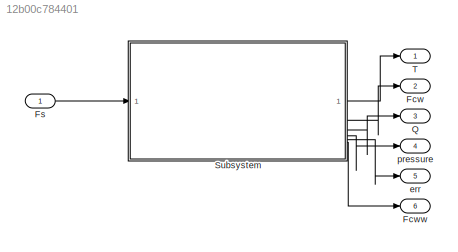
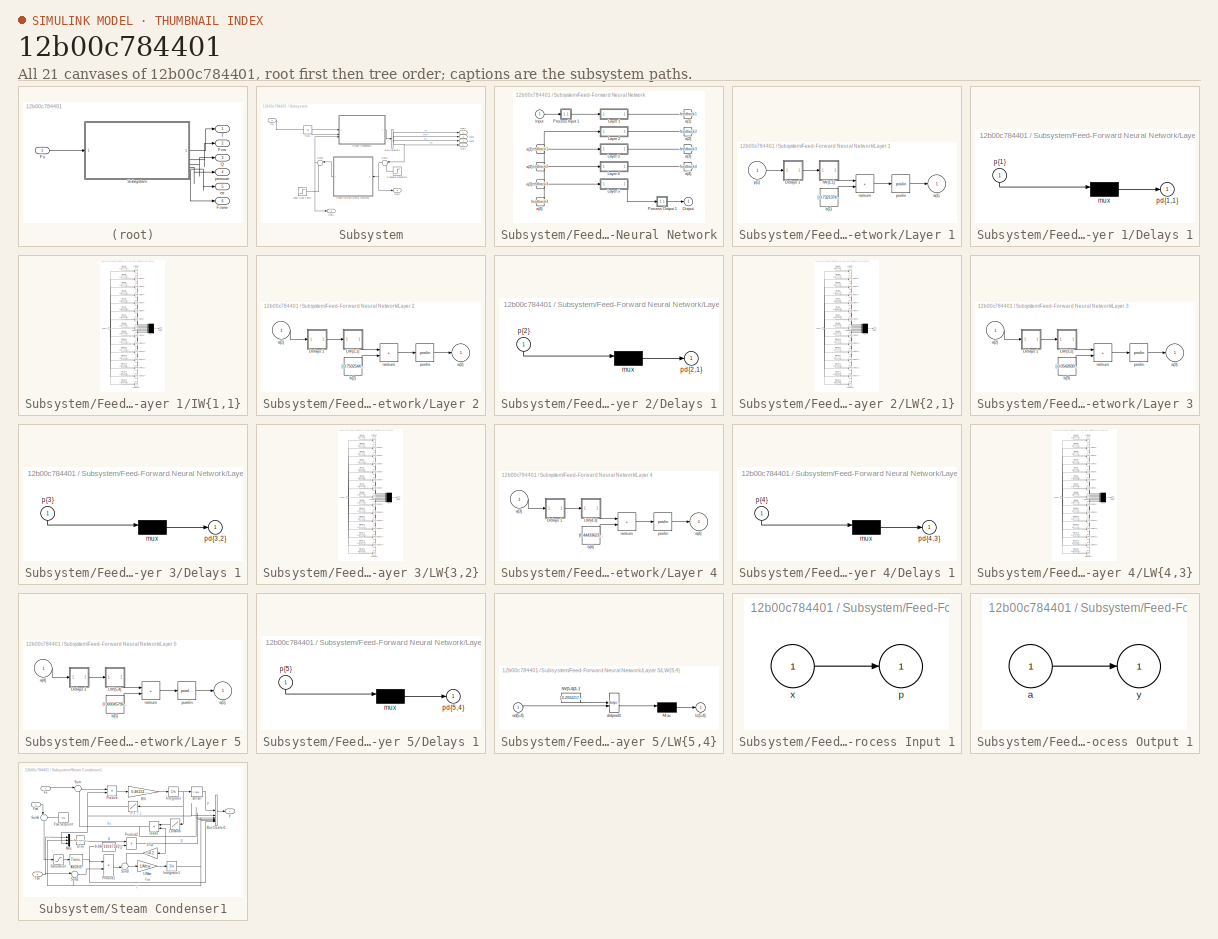
[diagram: thumbnail index - all 21 canvases of the model, root first then tree order]
MODEL slx_12b00c784401
KIND model
CONFIG AbsTol = auto
CONFIG EnableMultiTasking = off
CONFIG FixedStep = 0.02
CONFIG MaxStep = .1
CONFIG MinStep = auto
CONFIG RelTol = 1e-3
CONFIG SampleTimeConstraint = Unconstrained
CONFIG SolverName = VariableStepAuto
CONFIG StartTime = 0.0
CONFIG StopTime = 40
WORKSPACE source: mxarray member
WORKSPACE T = [0 0.05 0.1 0.15 0.2 0.25 0.3 0.35 0.4 0.45 0.5 0.55 ... (701 elements, 701x1)]
WORKSPACE U = [3.99594136536 3.99594136536 3.99594136536 3.99594136536 3.99594136536 3.99594136536 3.99594136536 3.99594136536 3.99594136536 3.99594136536 3.99594136536 3.99594136536 ... (701 elements, 701x1)]
BLOCK [Outport] Fcw
  Port = 2
  VectorParamsAs1DForOutWhenUnconnected = off
BLOCK [Outport] Fcww
  Port = 6
BLOCK [Inport] Fs
BLOCK [Outport] Q
  Port = 3
  VectorParamsAs1DForOutWhenUnconnected = off
BLOCK [SubSystem] Subsystem
BLOCK [BusSelector] Subsystem/Bus Selector1
  OutputSignals = T,Fcw,Q,P
BLOCK [SubSystem] Subsystem/Feed-Forward Neural Network
BLOCK [From] Subsystem/Feed-Forward Neural Network/ a{1} 
  GotoTag = feedback1
BLOCK [From] Subsystem/Feed-Forward Neural Network/ a{2} 
  GotoTag = feedback2
BLOCK [From] Subsystem/Feed-Forward Neural Network/ a{3} 
  GotoTag = feedback3
BLOCK [From] Subsystem/Feed-Forward Neural Network/ a{4} 
  GotoTag = feedback4
BLOCK [Inport] Subsystem/Feed-Forward Neural Network/Input
  PortDimensions = 1
BLOCK [SubSystem] Subsystem/Feed-Forward Neural Network/Layer 1
BLOCK [SubSystem] Subsystem/Feed-Forward Neural Network/Layer 1/Delays 1
BLOCK [Mux] Subsystem/Feed-Forward Neural Network/Layer 1/Delays 1/mux
  Inputs = 1
BLOCK [Outport] Subsystem/Feed-Forward Neural Network/Layer 1/Delays 1/pd{1,1}
BLOCK [Inport] Subsystem/Feed-Forward Neural Network/Layer 1/Delays 1/p{1}
  NameLocation = left
  PortDimensions = 1
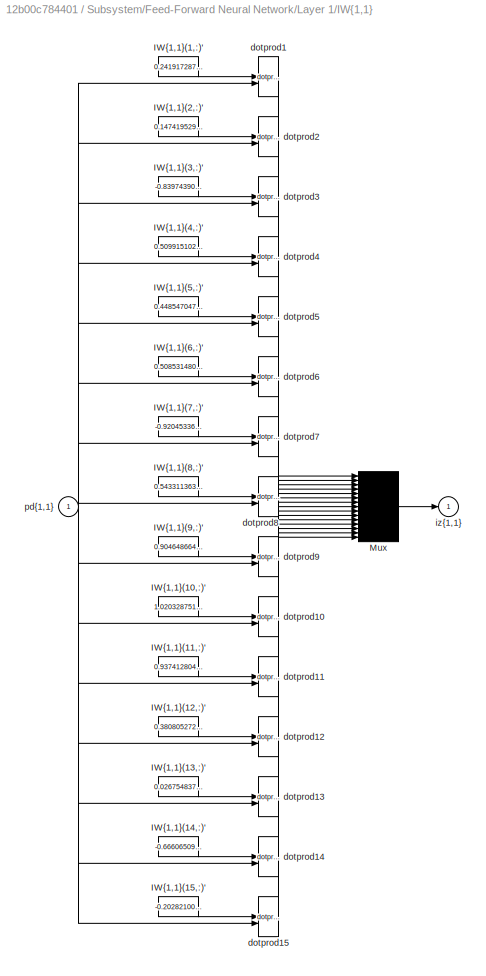
BLOCK [SubSystem] Subsystem/Feed-Forward Neural Network/Layer 1/IW{1,1}
BLOCK [Constant] Subsystem/Feed-Forward Neural Network/Layer 1/IW{1,1}/IW{1,1}(1,:)'
  Value = 0.241917287870616615208518851432017982006072998046875
BLOCK [Constant] Subsystem/Feed-Forward Neural Network/Layer 1/IW{1,1}/IW{1,1}(10,:)'
  Value = 1.020328751246648568695718495291657745838165283203125
BLOCK [Constant] Subsystem/Feed-Forward Neural Network/Layer 1/IW{1,1}/IW{1,1}(11,:)'
  Value = 0.937412804331800852963851866661570966243743896484375
BLOCK [Constant] Subsystem/Feed-Forward Neural Network/Layer 1/IW{1,1}/IW{1,1}(12,:)'
  Value = 0.380805272388128612792712601731182076036930084228515625
BLOCK [Constant] Subsystem/Feed-Forward Neural Network/Layer 1/IW{1,1}/IW{1,1}(13,:)'
  Value = 0.0267548371751498148540804322692565619945526123046875
BLOCK [Constant] Subsystem/Feed-Forward Neural Network/Layer 1/IW{1,1}/IW{1,1}(14,:)'
  Value = -0.6660650949912698681742995177046395838260650634765625
BLOCK [Constant] Subsystem/Feed-Forward Neural Network/Layer 1/IW{1,1}/IW{1,1}(15,:)'
  Value = -0.2028210065283138074931912342435680329799652099609375
BLOCK [Constant] Subsystem/Feed-Forward Neural Network/Layer 1/IW{1,1}/IW{1,1}(2,:)'
  Value = 0.147419529682396355241280616610310971736907958984375
BLOCK [Constant] Subsystem/Feed-Forward Neural Network/Layer 1/IW{1,1}/IW{1,1}(3,:)'
  Value = -0.8397439059820346329843232524581253528594970703125
BLOCK [Constant] Subsystem/Feed-Forward Neural Network/Layer 1/IW{1,1}/IW{1,1}(4,:)'
  Value = 0.50991510248212523759292480463045649230480194091796875
BLOCK [Constant] Subsystem/Feed-Forward Neural Network/Layer 1/IW{1,1}/IW{1,1}(5,:)'
  Value = 0.44854704735354300471072974687558598816394805908203125
BLOCK [Constant] Subsystem/Feed-Forward Neural Network/Layer 1/IW{1,1}/IW{1,1}(6,:)'
  Value = 0.50853148027474848191786804818548262119293212890625
BLOCK [Constant] Subsystem/Feed-Forward Neural Network/Layer 1/IW{1,1}/IW{1,1}(7,:)'
  Value = -0.9204533630066287219761989035760052502155303955078125
BLOCK [Constant] Subsystem/Feed-Forward Neural Network/Layer 1/IW{1,1}/IW{1,1}(8,:)'
  Value = 0.54331136381051126083008284695097245275974273681640625
BLOCK [Constant] Subsystem/Feed-Forward Neural Network/Layer 1/IW{1,1}/IW{1,1}(9,:)'
  Value = 0.9046486643035740460305760279879905283451080322265625
BLOCK [Mux] Subsystem/Feed-Forward Neural Network/Layer 1/IW{1,1}/Mux
  Inputs = 15
BLOCK [Reference] Subsystem/Feed-Forward Neural Network/Layer 1/IW{1,1}/dotprod1  REF=neural/Weight Functions/dotprod
  SourceBlock = neural/Weight Functions/dotprod
  SourceType = DOTPROD
BLOCK [Reference] Subsystem/Feed-Forward Neural Network/Layer 1/IW{1,1}/dotprod10  REF=neural/Weight Functions/dotprod
  SourceBlock = neural/Weight Functions/dotprod
  SourceType = DOTPROD
BLOCK [Reference] Subsystem/Feed-Forward Neural Network/Layer 1/IW{1,1}/dotprod11  REF=neural/Weight Functions/dotprod
  SourceBlock = neural/Weight Functions/dotprod
  SourceType = DOTPROD
BLOCK [Reference] Subsystem/Feed-Forward Neural Network/Layer 1/IW{1,1}/dotprod12  REF=neural/Weight Functions/dotprod
  SourceBlock = neural/Weight Functions/dotprod
  SourceType = DOTPROD
BLOCK [Reference] Subsystem/Feed-Forward Neural Network/Layer 1/IW{1,1}/dotprod13  REF=neural/Weight Functions/dotprod
  SourceBlock = neural/Weight Functions/dotprod
  SourceType = DOTPROD
BLOCK [Reference] Subsystem/Feed-Forward Neural Network/Layer 1/IW{1,1}/dotprod14  REF=neural/Weight Functions/dotprod
  SourceBlock = neural/Weight Functions/dotprod
  SourceType = DOTPROD
BLOCK [Reference] Subsystem/Feed-Forward Neural Network/Layer 1/IW{1,1}/dotprod15  REF=neural/Weight Functions/dotprod
  SourceBlock = neural/Weight Functions/dotprod
  SourceType = DOTPROD
BLOCK [Reference] Subsystem/Feed-Forward Neural Network/Layer 1/IW{1,1}/dotprod2  REF=neural/Weight Functions/dotprod
  SourceBlock = neural/Weight Functions/dotprod
  SourceType = DOTPROD
BLOCK [Reference] Subsystem/Feed-Forward Neural Network/Layer 1/IW{1,1}/dotprod3  REF=neural/Weight Functions/dotprod
  SourceBlock = neural/Weight Functions/dotprod
  SourceType = DOTPROD
BLOCK [Reference] Subsystem/Feed-Forward Neural Network/Layer 1/IW{1,1}/dotprod4  REF=neural/Weight Functions/dotprod
  SourceBlock = neural/Weight Functions/dotprod
  SourceType = DOTPROD
BLOCK [Reference] Subsystem/Feed-Forward Neural Network/Layer 1/IW{1,1}/dotprod5  REF=neural/Weight Functions/dotprod
  SourceBlock = neural/Weight Functions/dotprod
  SourceType = DOTPROD
BLOCK [Reference] Subsystem/Feed-Forward Neural Network/Layer 1/IW{1,1}/dotprod6  REF=neural/Weight Functions/dotprod
  SourceBlock = neural/Weight Functions/dotprod
  SourceType = DOTPROD
BLOCK [Reference] Subsystem/Feed-Forward Neural Network/Layer 1/IW{1,1}/dotprod7  REF=neural/Weight Functions/dotprod
  SourceBlock = neural/Weight Functions/dotprod
  SourceType = DOTPROD
BLOCK [Reference] Subsystem/Feed-Forward Neural Network/Layer 1/IW{1,1}/dotprod8  REF=neural/Weight Functions/dotprod
  SourceBlock = neural/Weight Functions/dotprod
  SourceType = DOTPROD
BLOCK [Reference] Subsystem/Feed-Forward Neural Network/Layer 1/IW{1,1}/dotprod9  REF=neural/Weight Functions/dotprod
  SourceBlock = neural/Weight Functions/dotprod
  SourceType = DOTPROD
BLOCK [Outport] Subsystem/Feed-Forward Neural Network/Layer 1/IW{1,1}/iz{1,1}
BLOCK [Inport] Subsystem/Feed-Forward Neural Network/Layer 1/IW{1,1}/pd{1,1}
  PortDimensions = 1
BLOCK [Outport] Subsystem/Feed-Forward Neural Network/Layer 1/a{1}
  InitialOutput = [0;0;0;0;0;0;0;0;0;0;0;0;0;0;0]
BLOCK [Constant] Subsystem/Feed-Forward Neural Network/Layer 1/b{1}
  Value = [-0.7321374980240575869316899115801788866519927978515625;-0.9382209025100969324029165363754145801067352294921875;1.003418172832057475574174532084725797176361083984375;-0.50948412425360789512751580332405865192413330078125;-0.359417803482431963413290532116661779582500457763671875;-0.381606218908110694787438887942698784172534942626953125;-0.043131970491484490637379423105812747962772846221923828125;0....<+449ch>
BLOCK [Sum] Subsystem/Feed-Forward Neural Network/Layer 1/netsum
  IconShape = rectangular
  InputSameDT = on
  Inputs = 2
  OutDataTypeStr = Inherit: Same as first input
  SaturateOnIntegerOverflow = on
BLOCK [Reference] Subsystem/Feed-Forward Neural Network/Layer 1/poslin  REF=neural/Transfer Functions/poslin
  SourceBlock = neural/Transfer Functions/poslin
  SourceType = POSLIN
BLOCK [Inport] Subsystem/Feed-Forward Neural Network/Layer 1/p{1}
  PortDimensions = 1
BLOCK [SubSystem] Subsystem/Feed-Forward Neural Network/Layer 2
BLOCK [SubSystem] Subsystem/Feed-Forward Neural Network/Layer 2/Delays 1
BLOCK [Mux] Subsystem/Feed-Forward Neural Network/Layer 2/Delays 1/mux
  Inputs = 1
BLOCK [Outport] Subsystem/Feed-Forward Neural Network/Layer 2/Delays 1/pd{2,1}
BLOCK [Inport] Subsystem/Feed-Forward Neural Network/Layer 2/Delays 1/p{2}
  NameLocation = left
  PortDimensions = 15
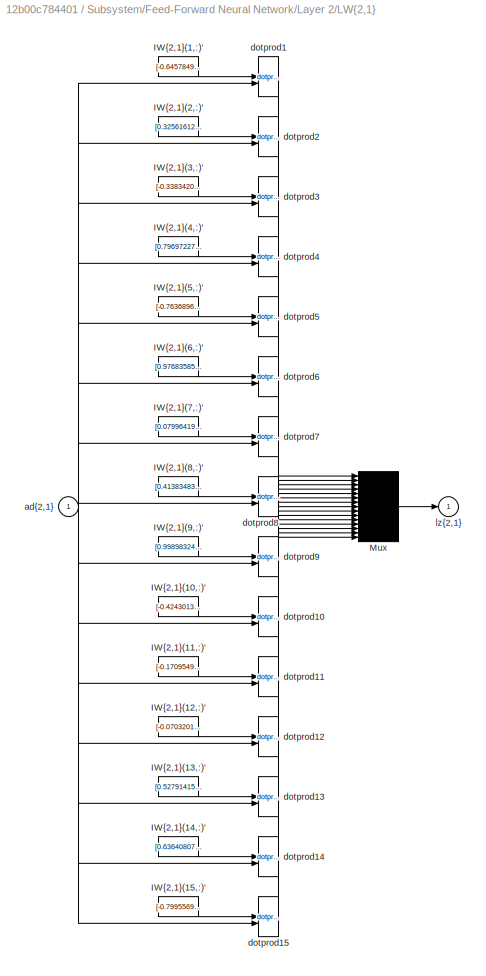
BLOCK [SubSystem] Subsystem/Feed-Forward Neural Network/Layer 2/LW{2,1}
BLOCK [Constant] Subsystem/Feed-Forward Neural Network/Layer 2/LW{2,1}/IW{2,1}(1,:)'
  Value = [-0.6457849324217816988635831876308657228946685791015625;-0.643766092226467190329231016221456229686737060546875;-0.63161180496894697711240951321087777614593505859375;-0.0878846663125170124430951545946300029754638671875;0.0675439035340004156893201070488430559635162353515625;0.3850639727730376105085952076478861272335052490234375;-0.897336227775257899708094555535353720188140869140625;0.48006465597555...<+421ch>
BLOCK [Constant] Subsystem/Feed-Forward Neural Network/Layer 2/LW{2,1}/IW{2,1}(10,:)'
  Value = [-0.4243013103697255150592582140234299004077911376953125;-0.0630636001920052979841102569480426609516143798828125;-0.1472359796018280209128903379678376950323581695556640625;0.5228517733802267031251176376827061176300048828125;0.20693596766153898869333715992979705333709716796875;-0.7442232404340096696415685073588974773883819580078125;-0.7655379752027771100841846418916247785091400146484375;0.186340719...<+436ch>
BLOCK [Constant] Subsystem/Feed-Forward Neural Network/Layer 2/LW{2,1}/IW{2,1}(11,:)'
  Value = [-0.170954922213783166995426654466427862644195556640625;0.82426494847924569597807931131683290004730224609375;-0.97343359906549498106187456869520246982574462890625;0.262139998427187048690711890230886638164520263671875;0.0522049315911223832387122456566430628299713134765625;0.0990802140303959077982653980143368244171142578125;0.2814358459318511140878626974881626665592193603515625;0.5787278872838108600...<+417ch>
BLOCK [Constant] Subsystem/Feed-Forward Neural Network/Layer 2/LW{2,1}/IW{2,1}(12,:)'
  Value = [-0.0703201167497253809557378190220333635807037353515625;-0.7919768504412429965810815701843239367008209228515625;0.71992193799954673494312373804859817028045654296875;-0.630205506455511876851005581556819379329681396484375;0.5675636861787671794132847935543395578861236572265625;0.08207891408204358307809656025710864923894405364990234375;-0.383347827296309506817095780206727795302867889404296875;-0.0973...<+434ch>
BLOCK [Constant] Subsystem/Feed-Forward Neural Network/Layer 2/LW{2,1}/IW{2,1}(13,:)'
  Value = [0.5279141569839131964414491449133493006229400634765625;0.4910921474034346534409678497468121349811553955078125;-0.606683617264736074758957329322583973407745361328125;-0.8382751537393726692926065879873931407928466796875;0.414506970630843074587801311281509697437286376953125;0.7809513583688765248069785229745320975780487060546875;0.3076240451915472906563309152261354029178619384765625;-0.58794428098961...<+422ch>
BLOCK [Constant] Subsystem/Feed-Forward Neural Network/Layer 2/LW{2,1}/IW{2,1}(14,:)'
  Value = [0.636408077815341588490127833210863173007965087890625;0.4725349111932770629351807656348682940006256103515625;-0.8132589664898139947268873584107495844364166259765625;0.554481073097886412170964831602759659290313720703125;0.5627541035985543782516060673515312373638153076171875;0.597920557625758686270955877262167632579803466796875;0.498262926207038159276407895958982408046722412109375;-0.82666690520893...<+428ch>
BLOCK [Constant] Subsystem/Feed-Forward Neural Network/Layer 2/LW{2,1}/IW{2,1}(15,:)'
  Value = [-0.799556919609016869543438588152639567852020263671875;0.12372285056327481100879595032893121242523193359375;-0.4085777770958720633842631286825053393840789794921875;0.8454627037540454193020877937669865787029266357421875;-0.396755348001297580839974443733808584511280059814453125;0.494827014658522024159736929505015723407268524169921875;0.1646968043821666061177211304311640560626983642578125;0.54661948...<+438ch>
BLOCK [Constant] Subsystem/Feed-Forward Neural Network/Layer 2/LW{2,1}/IW{2,1}(2,:)'
  Value = [0.325616123921948830144401654251851141452789306640625;-0.2807301730358393587749787911889143288135528564453125;0.19442270067570976976867314078845083713531494140625;-0.7966612127504897333807321047061122953891754150390625;-0.7816915759150828701962154809734784066677093505859375;0.1133396699280251329611246546846814453601837158203125;-0.854229401802047760838831891305744647979736328125;-0.53034617050419...<+426ch>
BLOCK [Constant] Subsystem/Feed-Forward Neural Network/Layer 2/LW{2,1}/IW{2,1}(3,:)'
  Value = [-0.33834200959339089109789711073972284793853759765625;-0.8865906218634176383375233854167163372039794921875;-0.4001260198204221740780894833733327686786651611328125;0.9663093405192018092719763444620184600353240966796875;0.64075160541485065568423351578530855476856231689453125;-0.2190752782231536188728426850502728484570980072021484375;-0.8229450806505591575756852762424387037754058837890625;0.44081320...<+442ch>
BLOCK [Constant] Subsystem/Feed-Forward Neural Network/Layer 2/LW{2,1}/IW{2,1}(4,:)'
  Value = [0.7969722756685990727731905280961655080318450927734375;0.0437713473225584959180878286133520305156707763671875;-0.77785119825907778068341258403961546719074249267578125;-0.312837052140269522571003335542627610266208648681640625;-0.314694382702794095418852293732925318181514739990234375;-0.86779486644567871422850657836534082889556884765625;0.5967017282279047929449689036118797957897186279296875;0.91518...<+437ch>
BLOCK [Constant] Subsystem/Feed-Forward Neural Network/Layer 2/LW{2,1}/IW{2,1}(5,:)'
  Value = [-0.763689603106578740465693044825457036495208740234375;-0.3283020506461509224749306667945347726345062255859375;-0.5704419583523208103770230081863701343536376953125;-0.45829946549878164407942904290393926203250885009765625;-0.4366150095044556422863024636171758174896240234375;0.5332677214968111201187639380805194377899169921875;0.8952719387429575181869267908041365444660186767578125;0.6597400234036668...<+431ch>
BLOCK [Constant] Subsystem/Feed-Forward Neural Network/Layer 2/LW{2,1}/IW{2,1}(6,:)'
  Value = [0.9768358575699611634490793221630156040191650390625;-0.6486619406486784367160680631059221923351287841796875;0.86394592126541669419026447940268553793430328369140625;-0.8785653039806018416157940009725280106067657470703125;0.48815812256986135242442514936556108295917510986328125;-0.32657841072230764378758749444386921823024749755859375;0.412598812569055173327114971471019089221954345703125;-0.800920176...<+446ch>
BLOCK [Constant] Subsystem/Feed-Forward Neural Network/Layer 2/LW{2,1}/IW{2,1}(7,:)'
  Value = [0.0799641980758583059696320560760796070098876953125;-0.582106652013729242156614418490789830684661865234375;-0.8615627154886003058464893911150284111499786376953125;-0.404335991703228370131029123513144440948963165283203125;-0.9790463674820435446832789239124394953250885009765625;0.2151973579328964325529938150793896056711673736572265625;-0.735834088572874467359952177503146231174468994140625;-0.278219...<+439ch>
BLOCK [Constant] Subsystem/Feed-Forward Neural Network/Layer 2/LW{2,1}/IW{2,1}(8,:)'
  Value = [0.413834838645525504574607111862860620021820068359375;0.8103071180089280733938039702479727566242218017578125;-0.5531510781217712224844262891565449535846710205078125;-0.7977640613418517379074046402820385992527008056640625;-0.82859185706446047969819801437552087008953094482421875;0.5556381860521237836536556642386130988597869873046875;0.4454490793135317261430827784352004528045654296875;-0.18418355459...<+436ch>
BLOCK [Constant] Subsystem/Feed-Forward Neural Network/Layer 2/LW{2,1}/IW{2,1}(9,:)'
  Value = [0.9989832401954092944151852861978113651275634765625;0.35078235467249374579523646389134228229522705078125;-0.892491215582572383624437861726619303226470947265625;0.010856284915405911561947505106218159198760986328125;0.3358322431472473557079183592577464878559112548828125;-0.7903735160530007686219278184580616652965545654296875;-0.7792930387153027549373973670299164950847625732421875;0.3700569453232185...<+427ch>
BLOCK [Mux] Subsystem/Feed-Forward Neural Network/Layer 2/LW{2,1}/Mux
  Inputs = 15
BLOCK [Inport] Subsystem/Feed-Forward Neural Network/Layer 2/LW{2,1}/ad{2,1}
  PortDimensions = 15
BLOCK [Reference] Subsystem/Feed-Forward Neural Network/Layer 2/LW{2,1}/dotprod1  REF=neural/Weight Functions/dotprod
  SourceBlock = neural/Weight Functions/dotprod
  SourceType = DOTPROD
BLOCK [Reference] Subsystem/Feed-Forward Neural Network/Layer 2/LW{2,1}/dotprod10  REF=neural/Weight Functions/dotprod
  SourceBlock = neural/Weight Functions/dotprod
  SourceType = DOTPROD
BLOCK [Reference] Subsystem/Feed-Forward Neural Network/Layer 2/LW{2,1}/dotprod11  REF=neural/Weight Functions/dotprod
  SourceBlock = neural/Weight Functions/dotprod
  SourceType = DOTPROD
BLOCK [Reference] Subsystem/Feed-Forward Neural Network/Layer 2/LW{2,1}/dotprod12  REF=neural/Weight Functions/dotprod
  SourceBlock = neural/Weight Functions/dotprod
  SourceType = DOTPROD
BLOCK [Reference] Subsystem/Feed-Forward Neural Network/Layer 2/LW{2,1}/dotprod13  REF=neural/Weight Functions/dotprod
  SourceBlock = neural/Weight Functions/dotprod
  SourceType = DOTPROD
BLOCK [Reference] Subsystem/Feed-Forward Neural Network/Layer 2/LW{2,1}/dotprod14  REF=neural/Weight Functions/dotprod
  SourceBlock = neural/Weight Functions/dotprod
  SourceType = DOTPROD
BLOCK [Reference] Subsystem/Feed-Forward Neural Network/Layer 2/LW{2,1}/dotprod15  REF=neural/Weight Functions/dotprod
  SourceBlock = neural/Weight Functions/dotprod
  SourceType = DOTPROD
BLOCK [Reference] Subsystem/Feed-Forward Neural Network/Layer 2/LW{2,1}/dotprod2  REF=neural/Weight Functions/dotprod
  SourceBlock = neural/Weight Functions/dotprod
  SourceType = DOTPROD
BLOCK [Reference] Subsystem/Feed-Forward Neural Network/Layer 2/LW{2,1}/dotprod3  REF=neural/Weight Functions/dotprod
  SourceBlock = neural/Weight Functions/dotprod
  SourceType = DOTPROD
BLOCK [Reference] Subsystem/Feed-Forward Neural Network/Layer 2/LW{2,1}/dotprod4  REF=neural/Weight Functions/dotprod
  SourceBlock = neural/Weight Functions/dotprod
  SourceType = DOTPROD
BLOCK [Reference] Subsystem/Feed-Forward Neural Network/Layer 2/LW{2,1}/dotprod5  REF=neural/Weight Functions/dotprod
  SourceBlock = neural/Weight Functions/dotprod
  SourceType = DOTPROD
BLOCK [Reference] Subsystem/Feed-Forward Neural Network/Layer 2/LW{2,1}/dotprod6  REF=neural/Weight Functions/dotprod
  SourceBlock = neural/Weight Functions/dotprod
  SourceType = DOTPROD
BLOCK [Reference] Subsystem/Feed-Forward Neural Network/Layer 2/LW{2,1}/dotprod7  REF=neural/Weight Functions/dotprod
  SourceBlock = neural/Weight Functions/dotprod
  SourceType = DOTPROD
BLOCK [Reference] Subsystem/Feed-Forward Neural Network/Layer 2/LW{2,1}/dotprod8  REF=neural/Weight Functions/dotprod
  SourceBlock = neural/Weight Functions/dotprod
  SourceType = DOTPROD
BLOCK [Reference] Subsystem/Feed-Forward Neural Network/Layer 2/LW{2,1}/dotprod9  REF=neural/Weight Functions/dotprod
  SourceBlock = neural/Weight Functions/dotprod
  SourceType = DOTPROD
BLOCK [Outport] Subsystem/Feed-Forward Neural Network/Layer 2/LW{2,1}/lz{2,1}
BLOCK [Inport] Subsystem/Feed-Forward Neural Network/Layer 2/a{1} 
  PortDimensions = 15
BLOCK [Outport] Subsystem/Feed-Forward Neural Network/Layer 2/a{2}
  InitialOutput = [0;0;0;0;0;0;0;0;0;0;0;0;0;0;0]
BLOCK [Constant] Subsystem/Feed-Forward Neural Network/Layer 2/b{2}
  Value = [-0.750254482560374302835271009826101362705230712890625;-0.951131967899252028786349910660646855831146240234375;-0.433042975104500793559481053307536058127880096435546875;-0.4474004266164559595608807285316288471221923828125;0.270903912305804961402344588350388221442699432373046875;0.98471967591668974062457664331304840743541717529296875;0.8548091311411407655640459779533557593822479248046875;-0.1400163...<+438ch>
BLOCK [Sum] Subsystem/Feed-Forward Neural Network/Layer 2/netsum
  IconShape = rectangular
  InputSameDT = on
  Inputs = 2
  OutDataTypeStr = Inherit: Same as first input
  SaturateOnIntegerOverflow = on
BLOCK [Reference] Subsystem/Feed-Forward Neural Network/Layer 2/poslin  REF=neural/Transfer Functions/poslin
  SourceBlock = neural/Transfer Functions/poslin
  SourceType = POSLIN
BLOCK [SubSystem] Subsystem/Feed-Forward Neural Network/Layer 3
BLOCK [SubSystem] Subsystem/Feed-Forward Neural Network/Layer 3/Delays 1
BLOCK [Mux] Subsystem/Feed-Forward Neural Network/Layer 3/Delays 1/mux
  Inputs = 1
BLOCK [Outport] Subsystem/Feed-Forward Neural Network/Layer 3/Delays 1/pd{3,2}
BLOCK [Inport] Subsystem/Feed-Forward Neural Network/Layer 3/Delays 1/p{3}
  NameLocation = left
  PortDimensions = 15
BLOCK [SubSystem] Subsystem/Feed-Forward Neural Network/Layer 3/LW{3,2}
BLOCK [Constant] Subsystem/Feed-Forward Neural Network/Layer 3/LW{3,2}/IW{3,2}(1,:)'
  Value = [-0.07347884281256167327001094236038625240325927734375;0.61840770258758670507859278586693108081817626953125;0.8211707469299989181621413081302307546138763427734375;-0.3681882701720786688071029857383109629154205322265625;0.07609133703574753881948566913706599734723567962646484375;-0.55261857923265422787295619855285622179508209228515625;0.62623626995813530538015356796677224338054656982421875;0.9617484...<+427ch>
BLOCK [Constant] Subsystem/Feed-Forward Neural Network/Layer 3/LW{3,2}/IW{3,2}(10,:)'
  Value = [0.4054046139009506166672736071632243692874908447265625;-0.489226519023898465121646950137801468372344970703125;0.36819149047349342129820115587790496647357940673828125;0.73232111279019751481911271184799261391162872314453125;0.5644840684043137546410662253038026392459869384765625;-0.409192376240863853187335053007700480520725250244140625;0.60436337130353245949976326301111839711666107177734375;0.275569...<+435ch>
BLOCK [Constant] Subsystem/Feed-Forward Neural Network/Layer 3/LW{3,2}/IW{3,2}(11,:)'
  Value = [-0.692819246761199547535170495393685996532440185546875;-0.9589284506836308619170949896215461194515228271484375;0.430425029571680273221545576234348118305206298828125;0.26237746853802246249642848852090537548065185546875;0.142051745648757776763204674352891743183135986328125;0.25469300488693402684248212608508765697479248046875;0.9722084837919402477979247123585082590579986572265625;-0.7242620151748835...<+422ch>
BLOCK [Constant] Subsystem/Feed-Forward Neural Network/Layer 3/LW{3,2}/IW{3,2}(12,:)'
  Value = [0.90691413977249535349756115465424954891204833984375;0.8473512252408144096449404969462193548679351806640625;0.284121656867704519555672959540970623493194580078125;-0.2898526962423020325587685874779708683490753173828125;-0.646289884749394527574395397095941007137298583984375;-0.9567003707393870737263341652578674256801605224609375;-0.940016099461220111521697617718018591403961181640625;-0.564396812575...<+424ch>
BLOCK [Constant] Subsystem/Feed-Forward Neural Network/Layer 3/LW{3,2}/IW{3,2}(13,:)'
  Value = [0.0817681624829529329900879019987769424915313720703125;0.3073997780165058646417719501187093555927276611328125;-0.167508056216082668044009551522321999073028564453125;0.99221535636222923937310724795679561793804168701171875;0.89450552896715473938371587792062200605869293212890625;0.80643824750455828098694155414705164730548858642578125;0.07133104835429372736488318196279578842222690582275390625;-0.6378...<+443ch>
BLOCK [Constant] Subsystem/Feed-Forward Neural Network/Layer 3/LW{3,2}/IW{3,2}(14,:)'
  Value = [0.3594677964209338494327994339982978999614715576171875;0.8652271440971281979415152818546630442142486572265625;-0.2184758355916509575678219334804452955722808837890625;-0.551626737037253178641549311578273773193359375;-0.483863231558987527680670837071374990046024322509765625;0.6619902357742237786197847526636905968189239501953125;-0.82582388575591403334641427136375568807125091552734375;-0.94551228007...<+427ch>
BLOCK [Constant] Subsystem/Feed-Forward Neural Network/Layer 3/LW{3,2}/IW{3,2}(15,:)'
  Value = [-0.926873963903094288951933776843361556529998779296875;-0.6729752629449488043889004984521307051181793212890625;0.62565902259171435328966026645503006875514984130859375;0.30322354127532513690113091797684319317340850830078125;0.7862620630773091701115617979667149484157562255859375;0.50390251807297026243048776450450532138347625732421875;0.60418901643982536597832222469151020050048828125;-0.801218143821...<+433ch>
BLOCK [Constant] Subsystem/Feed-Forward Neural Network/Layer 3/LW{3,2}/IW{3,2}(2,:)'
  Value = [-0.5756735894901312544646998503594659268856048583984375;0.4972377435523942512674011595663614571094512939453125;0.589315770777506298117032201844267547130584716796875;0.6290795458013025420740405024844221770763397216796875;-0.2255091370337301004411756366607733070850372314453125;-0.2528723847147100745047509917640127241611480712890625;-0.23338736274894156252912580384872853755950927734375;-0.8661074832...<+424ch>
BLOCK [Constant] Subsystem/Feed-Forward Neural Network/Layer 3/LW{3,2}/IW{3,2}(3,:)'
  Value = [-0.8029625246237832580931126358336769044399261474609375;-0.7596259640258387069167156369076110422611236572265625;0.1814363163091096964318893469680915586650371551513671875;0.57726529541488436070295620083925314247608184814453125;-0.58219656911834538615124756688601337373256683349609375;-0.9235509620333253177903998221154324710369110107421875;0.2290517727384137336432701204103068448603153228759765625;0....<+436ch>
BLOCK [Constant] Subsystem/Feed-Forward Neural Network/Layer 3/LW{3,2}/IW{3,2}(4,:)'
  Value = [0.64714894785567711466001128428615629673004150390625;0.0500903295252175251306425707298330962657928466796875;-0.1199288084794927211618187357089482247829437255859375;0.7045277806876912851663519177236594259738922119140625;-0.95257448695302582297728122284752316772937774658203125;0.1411641509244681291779244247663882561028003692626953125;0.1509897194056277758278383771539665758609771728515625;-0.9636449...<+436ch>
BLOCK [Constant] Subsystem/Feed-Forward Neural Network/Layer 3/LW{3,2}/IW{3,2}(5,:)'
  Value = [-0.64998052523584082251772997551597654819488525390625;-0.3483327424735016553114519410883076488971710205078125;-0.498818825544520005887960678592207841575145721435546875;0.012524719579718603112983288383475155569612979888916015625;-0.213517818291461491941873873656732030212879180908203125;-0.58897651255926763980141913634724915027618408203125;0.063195726406524543872222920981585048139095306396484375;0....<+441ch>
BLOCK [Constant] Subsystem/Feed-Forward Neural Network/Layer 3/LW{3,2}/IW{3,2}(6,:)'
  Value = [-0.672860180430013610219930342282168567180633544921875;0.0928988798061369802638864712207578122615814208984375;0.5038927877348999828654996235854923725128173828125;0.271322777722753816220802036696113646030426025390625;-0.6317994211449775576738829840905964374542236328125;-0.909897785052851570952725523966364562511444091796875;-0.44986048835612990615118178538978099822998046875;0.5674729601664372236058...<+409ch>
BLOCK [Constant] Subsystem/Feed-Forward Neural Network/Layer 3/LW{3,2}/IW{3,2}(7,:)'
  Value = [0.3319744328222211660062157534412108361721038818359375;-0.20223849523360204472055556834675371646881103515625;-0.5314055241021808928536529492703266441822052001953125;0.90067522400825839046234477791585959494113922119140625;0.47128571211511360861123876020428724586963653564453125;0.458583531175582093108999970354489050805568695068359375;-0.50466773406056109063655412683147005736827850341796875;0.064267...<+439ch>
BLOCK [Constant] Subsystem/Feed-Forward Neural Network/Layer 3/LW{3,2}/IW{3,2}(8,:)'
  Value = [0.7887787507084855764816211376455612480640411376953125;-0.16981322677390675579545131768099963665008544921875;-0.87156179741711536923531866705161519348621368408203125;-0.11395390732255457344468396740921889431774616241455078125;-0.289199369362715230646898589839111082255840301513671875;-0.344505071273926766206585625695879571139812469482421875;-0.100297146095206429761148569923534523695707321166992187...<+431ch>
BLOCK [Constant] Subsystem/Feed-Forward Neural Network/Layer 3/LW{3,2}/IW{3,2}(9,:)'
  Value = [0.0331164167025408406885844669886864721775054931640625;-0.63852447949041124530822344240732491016387939453125;0.53036854299953706259884711471386253833770751953125;-0.8801314402746205356464770375168882310390472412109375;0.634272191146530328609287607832811772823333740234375;0.397694224106062865775612635843572206795215606689453125;-0.54512498156261524062671242063515819609165191650390625;0.77922647133...<+428ch>
BLOCK [Mux] Subsystem/Feed-Forward Neural Network/Layer 3/LW{3,2}/Mux
  Inputs = 15
BLOCK [Inport] Subsystem/Feed-Forward Neural Network/Layer 3/LW{3,2}/ad{3,2}
  PortDimensions = 15
BLOCK [Reference] Subsystem/Feed-Forward Neural Network/Layer 3/LW{3,2}/dotprod1  REF=neural/Weight Functions/dotprod
  SourceBlock = neural/Weight Functions/dotprod
  SourceType = DOTPROD
BLOCK [Reference] Subsystem/Feed-Forward Neural Network/Layer 3/LW{3,2}/dotprod10  REF=neural/Weight Functions/dotprod
  SourceBlock = neural/Weight Functions/dotprod
  SourceType = DOTPROD
BLOCK [Reference] Subsystem/Feed-Forward Neural Network/Layer 3/LW{3,2}/dotprod11  REF=neural/Weight Functions/dotprod
  SourceBlock = neural/Weight Functions/dotprod
  SourceType = DOTPROD
BLOCK [Reference] Subsystem/Feed-Forward Neural Network/Layer 3/LW{3,2}/dotprod12  REF=neural/Weight Functions/dotprod
  SourceBlock = neural/Weight Functions/dotprod
  SourceType = DOTPROD
BLOCK [Reference] Subsystem/Feed-Forward Neural Network/Layer 3/LW{3,2}/dotprod13  REF=neural/Weight Functions/dotprod
  SourceBlock = neural/Weight Functions/dotprod
  SourceType = DOTPROD
BLOCK [Reference] Subsystem/Feed-Forward Neural Network/Layer 3/LW{3,2}/dotprod14  REF=neural/Weight Functions/dotprod
  SourceBlock = neural/Weight Functions/dotprod
  SourceType = DOTPROD
BLOCK [Reference] Subsystem/Feed-Forward Neural Network/Layer 3/LW{3,2}/dotprod15  REF=neural/Weight Functions/dotprod
  SourceBlock = neural/Weight Functions/dotprod
  SourceType = DOTPROD
BLOCK [Reference] Subsystem/Feed-Forward Neural Network/Layer 3/LW{3,2}/dotprod2  REF=neural/Weight Functions/dotprod
  SourceBlock = neural/Weight Functions/dotprod
  SourceType = DOTPROD
BLOCK [Reference] Subsystem/Feed-Forward Neural Network/Layer 3/LW{3,2}/dotprod3  REF=neural/Weight Functions/dotprod
  SourceBlock = neural/Weight Functions/dotprod
  SourceType = DOTPROD
BLOCK [Reference] Subsystem/Feed-Forward Neural Network/Layer 3/LW{3,2}/dotprod4  REF=neural/Weight Functions/dotprod
  SourceBlock = neural/Weight Functions/dotprod
  SourceType = DOTPROD
BLOCK [Reference] Subsystem/Feed-Forward Neural Network/Layer 3/LW{3,2}/dotprod5  REF=neural/Weight Functions/dotprod
  SourceBlock = neural/Weight Functions/dotprod
  SourceType = DOTPROD
BLOCK [Reference] Subsystem/Feed-Forward Neural Network/Layer 3/LW{3,2}/dotprod6  REF=neural/Weight Functions/dotprod
  SourceBlock = neural/Weight Functions/dotprod
  SourceType = DOTPROD
BLOCK [Reference] Subsystem/Feed-Forward Neural Network/Layer 3/LW{3,2}/dotprod7  REF=neural/Weight Functions/dotprod
  SourceBlock = neural/Weight Functions/dotprod
  SourceType = DOTPROD
BLOCK [Reference] Subsystem/Feed-Forward Neural Network/Layer 3/LW{3,2}/dotprod8  REF=neural/Weight Functions/dotprod
  SourceBlock = neural/Weight Functions/dotprod
  SourceType = DOTPROD
BLOCK [Reference] Subsystem/Feed-Forward Neural Network/Layer 3/LW{3,2}/dotprod9  REF=neural/Weight Functions/dotprod
  SourceBlock = neural/Weight Functions/dotprod
  SourceType = DOTPROD
BLOCK [Outport] Subsystem/Feed-Forward Neural Network/Layer 3/LW{3,2}/lz{3,2}
BLOCK [Inport] Subsystem/Feed-Forward Neural Network/Layer 3/a{2} 
  PortDimensions = 15
BLOCK [Outport] Subsystem/Feed-Forward Neural Network/Layer 3/a{3}
  InitialOutput = [0;0;0;0;0;0;0;0;0;0;0;0;0;0;0]
BLOCK [Constant] Subsystem/Feed-Forward Neural Network/Layer 3/b{3}
  Value = [-0.0542830139320046589634927158840582706034183502197265625;0.3894864662652202103032550439820624887943267822265625;0.92179549045934894291320915726828388869762420654296875;-0.408389677887150470692034787134616635739803314208984375;0.69394335529100803494628735279547981917858123779296875;0.4781444545470561191535807665786705911159515380859375;0.902150966194475767423455181415192782878875732421875;-0.972...<+442ch>
BLOCK [Sum] Subsystem/Feed-Forward Neural Network/Layer 3/netsum
  IconShape = rectangular
  InputSameDT = on
  Inputs = 2
  OutDataTypeStr = Inherit: Same as first input
  SaturateOnIntegerOverflow = on
BLOCK [Reference] Subsystem/Feed-Forward Neural Network/Layer 3/poslin  REF=neural/Transfer Functions/poslin
  SourceBlock = neural/Transfer Functions/poslin
  SourceType = POSLIN
BLOCK [SubSystem] Subsystem/Feed-Forward Neural Network/Layer 4
BLOCK [SubSystem] Subsystem/Feed-Forward Neural Network/Layer 4/Delays 1
BLOCK [Mux] Subsystem/Feed-Forward Neural Network/Layer 4/Delays 1/mux
  Inputs = 1
BLOCK [Outport] Subsystem/Feed-Forward Neural Network/Layer 4/Delays 1/pd{4,3}
BLOCK [Inport] Subsystem/Feed-Forward Neural Network/Layer 4/Delays 1/p{4}
  NameLocation = left
  PortDimensions = 15
BLOCK [SubSystem] Subsystem/Feed-Forward Neural Network/Layer 4/LW{4,3}
BLOCK [Constant] Subsystem/Feed-Forward Neural Network/Layer 4/LW{4,3}/IW{4,3}(1,:)'
  Value = [0.318007448593325692254296654937206767499446868896484375;0.0075615715523118520735579295433126389980316162109375;-0.96361569277834124847004204639233648777008056640625;0.860487806043781500164868702995590865612030029296875;0.7524752577316433654885940995882265269756317138671875;0.0077755469209772609673336773994378745555877685546875;-0.422356185153830387957185621417011134326457977294921875;0.660112132...<+428ch>
BLOCK [Constant] Subsystem/Feed-Forward Neural Network/Layer 4/LW{4,3}/IW{4,3}(10,:)'
  Value = [-0.73825865875039620167541443152003921568393707275390625;0.334240600080149885542368792812339961528778076171875;-0.34759286482494566872247787614469416439533233642578125;-0.8904164201605351269819266235572285950183868408203125;0.6651335768264690084805579317617230117321014404296875;-0.732992280677375429576159149291925132274627685546875;-0.932434493180203549655971073661930859088897705078125;-0.8534455...<+441ch>
BLOCK [Constant] Subsystem/Feed-Forward Neural Network/Layer 4/LW{4,3}/IW{4,3}(11,:)'
  Value = [0.6611543110624340524594799717306159436702728271484375;0.172879229357835839664403465576469898223876953125;-0.73239400543458577086397554012364707887172698974609375;-0.388976697640453117355008316735620610415935516357421875;-0.1647486253821566493105166273380746133625507354736328125;-0.9568882255930060143356286062044091522693634033203125;-0.08967440119208837379094489961062208749353885650634765625;-0....<+442ch>
BLOCK [Constant] Subsystem/Feed-Forward Neural Network/Layer 4/LW{4,3}/IW{4,3}(12,:)'
  Value = [-0.7062121605125781798051320947706699371337890625;0.3502248328102306462739079506718553602695465087890625;-0.29514974520824022174991796418908052146434783935546875;-0.910971163136844896968113971524871885776519775390625;-0.04374406409938964845895981170542654581367969512939453125;0.11968141174501933932106112479232251644134521484375;0.264553137550485095719210448805824853479862213134765625;0.3319079151...<+438ch>
BLOCK [Constant] Subsystem/Feed-Forward Neural Network/Layer 4/LW{4,3}/IW{4,3}(13,:)'
  Value = [0.1572047928025288310305285222057136707007884979248046875;-0.2779559016106782909361072597675956785678863525390625;-0.7640312274407909942652850077138282358646392822265625;-0.604037151232293734182121625053696334362030029296875;0.1039704250373072458302203813218511641025543212890625;-0.3983619638610218505192506199819035828113555908203125;0.06345107524350544758728887018150999210774898529052734375;0.86...<+442ch>
BLOCK [Constant] Subsystem/Feed-Forward Neural Network/Layer 4/LW{4,3}/IW{4,3}(14,:)'
  Value = [-0.2496040486909129330062029339387663640081882476806640625;0.24055685414217098383460324839688837528228759765625;0.77732094229939596718992333990172483026981353759765625;0.436514146718682827241764243808574974536895751953125;-0.445911323119876523701776704911026172339916229248046875;0.878819427746916570498569853953085839748382568359375;-0.285655534964172563849871266938862390816211700439453125;0.62030...<+439ch>
BLOCK [Constant] Subsystem/Feed-Forward Neural Network/Layer 4/LW{4,3}/IW{4,3}(15,:)'
  Value = [0.59369205558419835266903419324080459773540496826171875;0.6223017702005704254730744651169516146183013916015625;-0.82303653443154389801605930188088677823543548583984375;0.447647643950220885944446536086616106331348419189453125;0.478950635277783864918177414438105188310146331787109375;0.961807272093718079730706449481658637523651123046875;0.907417665800277717380595277063548564910888671875;-0.027928749...<+434ch>
BLOCK [Constant] Subsystem/Feed-Forward Neural Network/Layer 4/LW{4,3}/IW{4,3}(2,:)'
  Value = [-0.904890653772267850030175395659171044826507568359375;-0.0208113225532915446791548674809746444225311279296875;-0.8322529834342002885705369408242404460906982421875;-0.201960061930889001047262354404665529727935791015625;0.1648659289748206635550786813837476074695587158203125;0.293619332545560940417317397077567875385284423828125;0.601640573903069242334140653838403522968292236328125;0.698170959908910...<+417ch>
BLOCK [Constant] Subsystem/Feed-Forward Neural Network/Layer 4/LW{4,3}/IW{4,3}(3,:)'
  Value = [-0.2801725156256142934552144652116112411022186279296875;0.754097446770087831424689284176565706729888916015625;0.9614352930014380405054907896555960178375244140625;-0.89902945368803965919823895092122256755828857421875;-0.83854787826719501264705058929393999278545379638671875;-0.384508835938118576081024002633057534694671630859375;0.78776955048410834958616533185704611241817474365234375;-0.257803977405...<+432ch>
BLOCK [Constant] Subsystem/Feed-Forward Neural Network/Layer 4/LW{4,3}/IW{4,3}(4,:)'
  Value = [-0.0827155958793168444298515851187403313815593719482421875;-0.2937163741220889523475534588214941322803497314453125;0.310757925464084483468951702889171428978443145751953125;-0.312646539431700676292535945322015322744846343994140625;0.85891004195614339966624584121746011078357696533203125;-0.7225507278437108826807389050372876226902008056640625;0.192825028394793596131506774327135644853115081787109375;...<+444ch>
BLOCK [Constant] Subsystem/Feed-Forward Neural Network/Layer 4/LW{4,3}/IW{4,3}(5,:)'
  Value = [-0.5076498041192991639292131367255933582782745361328125;-0.1011128868565034366611143923364579677581787109375;-0.531737091336316414214024916873313486576080322265625;0.469753227964551711703933278840850107371807098388671875;0.6103536927369519471398007226525805890560150146484375;-0.04885413240487412878110262681730091571807861328125;0.75028146985276100711104163565323688089847564697265625;0.74346871291...<+432ch>
BLOCK [Constant] Subsystem/Feed-Forward Neural Network/Layer 4/LW{4,3}/IW{4,3}(6,:)'
  Value = [0.430090026592353069645469076931476593017578125;0.9270605736868537949391111396835185587406158447265625;-0.1930177137508202189764006106997840106487274169921875;0.59348617386316016020231245420291088521480560302734375;-0.4281062871592735685766228925785981118679046630859375;-0.2750814383625079795336887400480918586254119873046875;0.89083156503134330872484270003042183816432952880859375;0.86700321701421...<+436ch>
BLOCK [Constant] Subsystem/Feed-Forward Neural Network/Layer 4/LW{4,3}/IW{4,3}(7,:)'
  Value = [0.70708936324247384508367986200028099119663238525390625;-0.9154044041709143986196295372792519629001617431640625;-0.75151594573325775083816324695362709462642669677734375;0.0898117964893430098527460359036922454833984375;0.086933199946696071425122909204219467937946319580078125;0.5762268567970945110090497109922580420970916748046875;0.09406205343112995775900486705722869373857975006103515625;0.33759259...<+443ch>
BLOCK [Constant] Subsystem/Feed-Forward Neural Network/Layer 4/LW{4,3}/IW{4,3}(8,:)'
  Value = [-0.4369846097628933279111151932738721370697021484375;0.945916668281269412688061493099667131900787353515625;-0.462873560102180281461414779187180101871490478515625;0.371501187822665113191789032498490996658802032470703125;0.96988729620033009570789772624266333878040313720703125;0.5605916416882192887527480706921778619289398193359375;0.45657130501295617452939268332556821405887603759765625;-0.5864374785...<+429ch>
BLOCK [Constant] Subsystem/Feed-Forward Neural Network/Layer 4/LW{4,3}/IW{4,3}(9,:)'
  Value = [0.46027562325458293290836309097358025610446929931640625;-0.6215863137552479766867463695234619081020355224609375;-0.48180028837611599268342388313612900674343109130859375;0.78756321134661411154098686893121339380741119384765625;0.43159052574080047914861779645434580743312835693359375;0.33702442850708980159879502025432884693145751953125;0.1503460253569864069067563150383648462593555450439453125;0.31006...<+440ch>
BLOCK [Mux] Subsystem/Feed-Forward Neural Network/Layer 4/LW{4,3}/Mux
  Inputs = 15
BLOCK [Inport] Subsystem/Feed-Forward Neural Network/Layer 4/LW{4,3}/ad{4,3}
  PortDimensions = 15
BLOCK [Reference] Subsystem/Feed-Forward Neural Network/Layer 4/LW{4,3}/dotprod1  REF=neural/Weight Functions/dotprod
  SourceBlock = neural/Weight Functions/dotprod
  SourceType = DOTPROD
BLOCK [Reference] Subsystem/Feed-Forward Neural Network/Layer 4/LW{4,3}/dotprod10  REF=neural/Weight Functions/dotprod
  SourceBlock = neural/Weight Functions/dotprod
  SourceType = DOTPROD
BLOCK [Reference] Subsystem/Feed-Forward Neural Network/Layer 4/LW{4,3}/dotprod11  REF=neural/Weight Functions/dotprod
  SourceBlock = neural/Weight Functions/dotprod
  SourceType = DOTPROD
BLOCK [Reference] Subsystem/Feed-Forward Neural Network/Layer 4/LW{4,3}/dotprod12  REF=neural/Weight Functions/dotprod
  SourceBlock = neural/Weight Functions/dotprod
  SourceType = DOTPROD
BLOCK [Reference] Subsystem/Feed-Forward Neural Network/Layer 4/LW{4,3}/dotprod13  REF=neural/Weight Functions/dotprod
  SourceBlock = neural/Weight Functions/dotprod
  SourceType = DOTPROD
BLOCK [Reference] Subsystem/Feed-Forward Neural Network/Layer 4/LW{4,3}/dotprod14  REF=neural/Weight Functions/dotprod
  SourceBlock = neural/Weight Functions/dotprod
  SourceType = DOTPROD
BLOCK [Reference] Subsystem/Feed-Forward Neural Network/Layer 4/LW{4,3}/dotprod15  REF=neural/Weight Functions/dotprod
  SourceBlock = neural/Weight Functions/dotprod
  SourceType = DOTPROD
BLOCK [Reference] Subsystem/Feed-Forward Neural Network/Layer 4/LW{4,3}/dotprod2  REF=neural/Weight Functions/dotprod
  SourceBlock = neural/Weight Functions/dotprod
  SourceType = DOTPROD
BLOCK [Reference] Subsystem/Feed-Forward Neural Network/Layer 4/LW{4,3}/dotprod3  REF=neural/Weight Functions/dotprod
  SourceBlock = neural/Weight Functions/dotprod
  SourceType = DOTPROD
BLOCK [Reference] Subsystem/Feed-Forward Neural Network/Layer 4/LW{4,3}/dotprod4  REF=neural/Weight Functions/dotprod
  SourceBlock = neural/Weight Functions/dotprod
  SourceType = DOTPROD
BLOCK [Reference] Subsystem/Feed-Forward Neural Network/Layer 4/LW{4,3}/dotprod5  REF=neural/Weight Functions/dotprod
  SourceBlock = neural/Weight Functions/dotprod
  SourceType = DOTPROD
BLOCK [Reference] Subsystem/Feed-Forward Neural Network/Layer 4/LW{4,3}/dotprod6  REF=neural/Weight Functions/dotprod
  SourceBlock = neural/Weight Functions/dotprod
  SourceType = DOTPROD
BLOCK [Reference] Subsystem/Feed-Forward Neural Network/Layer 4/LW{4,3}/dotprod7  REF=neural/Weight Functions/dotprod
  SourceBlock = neural/Weight Functions/dotprod
  SourceType = DOTPROD
BLOCK [Reference] Subsystem/Feed-Forward Neural Network/Layer 4/LW{4,3}/dotprod8  REF=neural/Weight Functions/dotprod
  SourceBlock = neural/Weight Functions/dotprod
  SourceType = DOTPROD
BLOCK [Reference] Subsystem/Feed-Forward Neural Network/Layer 4/LW{4,3}/dotprod9  REF=neural/Weight Functions/dotprod
  SourceBlock = neural/Weight Functions/dotprod
  SourceType = DOTPROD
BLOCK [Outport] Subsystem/Feed-Forward Neural Network/Layer 4/LW{4,3}/lz{4,3}
BLOCK [Inport] Subsystem/Feed-Forward Neural Network/Layer 4/a{3} 
  PortDimensions = 15
BLOCK [Outport] Subsystem/Feed-Forward Neural Network/Layer 4/a{4}
  InitialOutput = [0;0;0;0;0;0;0;0;0;0;0;0;0;0;0]
BLOCK [Constant] Subsystem/Feed-Forward Neural Network/Layer 4/b{4}
  Value = [0.44433623908992514461857581409276463091373443603515625;-0.30620961942477276096497007529251277446746826171875;0.0231257702534978550057420676466790609993040561676025390625;0.10621768265057306146470494923050864599645137786865234375;-0.7037516662433447311997269935091026127338409423828125;0.12315851153477520851797777368119568563997745513916015625;0.3881032337515834540475623271049698814749717712402343...<+457ch>
BLOCK [Sum] Subsystem/Feed-Forward Neural Network/Layer 4/netsum
  IconShape = rectangular
  InputSameDT = on
  Inputs = 2
  OutDataTypeStr = Inherit: Same as first input
  SaturateOnIntegerOverflow = on
BLOCK [Reference] Subsystem/Feed-Forward Neural Network/Layer 4/poslin  REF=neural/Transfer Functions/poslin
  SourceBlock = neural/Transfer Functions/poslin
  SourceType = POSLIN
BLOCK [SubSystem] Subsystem/Feed-Forward Neural Network/Layer 5
BLOCK [SubSystem] Subsystem/Feed-Forward Neural Network/Layer 5/Delays 1
BLOCK [Mux] Subsystem/Feed-Forward Neural Network/Layer 5/Delays 1/mux
  Inputs = 1
BLOCK [Outport] Subsystem/Feed-Forward Neural Network/Layer 5/Delays 1/pd{5,4}
BLOCK [Inport] Subsystem/Feed-Forward Neural Network/Layer 5/Delays 1/p{5}
  NameLocation = left
  PortDimensions = 15
BLOCK [SubSystem] Subsystem/Feed-Forward Neural Network/Layer 5/LW{5,4}
BLOCK [Constant] Subsystem/Feed-Forward Neural Network/Layer 5/LW{5,4}/IW{5,4}(1,:)'
  Value = [-0.20042175337175649474374949932098388671875;0.387505148267826893260235010529868304729461669921875;0.91392783733480154051420640826108865439891815185546875;0.64847881357920755807100476886262185871601104736328125;0.458415871290973442331306841879268176853656768798828125;-0.779630047288894179047247234848327934741973876953125;-0.2278505397525093789656835951973334886133670806884765625;0.176920348215999...<+437ch>
BLOCK [Mux] Subsystem/Feed-Forward Neural Network/Layer 5/LW{5,4}/Mux
  Inputs = 1
BLOCK [Inport] Subsystem/Feed-Forward Neural Network/Layer 5/LW{5,4}/ad{5,4}
  PortDimensions = 15
BLOCK [Reference] Subsystem/Feed-Forward Neural Network/Layer 5/LW{5,4}/dotprod1  REF=neural/Weight Functions/dotprod
  SourceBlock = neural/Weight Functions/dotprod
  SourceType = DOTPROD
BLOCK [Outport] Subsystem/Feed-Forward Neural Network/Layer 5/LW{5,4}/lz{5,4}
BLOCK [Inport] Subsystem/Feed-Forward Neural Network/Layer 5/a{4} 
  PortDimensions = 15
BLOCK [Outport] Subsystem/Feed-Forward Neural Network/Layer 5/a{5}
  InitialOutput = 0
BLOCK [Constant] Subsystem/Feed-Forward Neural Network/Layer 5/b{5}
  Value = 0.30004579688341526111372559171286411583423614501953125
BLOCK [Sum] Subsystem/Feed-Forward Neural Network/Layer 5/netsum
  IconShape = rectangular
  InputSameDT = on
  Inputs = 2
  OutDataTypeStr = Inherit: Same as first input
  SaturateOnIntegerOverflow = on
BLOCK [Reference] Subsystem/Feed-Forward Neural Network/Layer 5/purelin  REF=neural/Transfer Functions/purelin
  SourceBlock = neural/Transfer Functions/purelin
  SourceType = PURELIN
BLOCK [Outport] Subsystem/Feed-Forward Neural Network/Output
  InitialOutput = 0
BLOCK [SubSystem] Subsystem/Feed-Forward Neural Network/Process Input 1
BLOCK [Outport] Subsystem/Feed-Forward Neural Network/Process Input 1/p
  PortDimensions = 1
BLOCK [Inport] Subsystem/Feed-Forward Neural Network/Process Input 1/x
  PortDimensions = 1
BLOCK [SubSystem] Subsystem/Feed-Forward Neural Network/Process Output 1
BLOCK [Inport] Subsystem/Feed-Forward Neural Network/Process Output 1/a
  PortDimensions = 1
BLOCK [Outport] Subsystem/Feed-Forward Neural Network/Process Output 1/y
  PortDimensions = 1
BLOCK [Goto] Subsystem/Feed-Forward Neural Network/a{1}
  GotoTag = feedback1
BLOCK [Goto] Subsystem/Feed-Forward Neural Network/a{2}
  GotoTag = feedback2
BLOCK [Goto] Subsystem/Feed-Forward Neural Network/a{3}
  GotoTag = feedback3
BLOCK [Goto] Subsystem/Feed-Forward Neural Network/a{4}
  GotoTag = feedback4
BLOCK [Inport] Subsystem/In1
BLOCK [Step] Subsystem/Input Step Test1
  After = 0
  SampleTime = 0
  Time = 10
BLOCK [Outport] Subsystem/Out1
  VectorParamsAs1DForOutWhenUnconnected = off
BLOCK [Outport] Subsystem/Out2
  Port = 2
  VectorParamsAs1DForOutWhenUnconnected = off
BLOCK [Outport] Subsystem/Out3
  Port = 3
  VectorParamsAs1DForOutWhenUnconnected = off
BLOCK [Outport] Subsystem/Out4
  Port = 4
  VectorParamsAs1DForOutWhenUnconnected = off
BLOCK [Outport] Subsystem/Out5
  Port = 5
BLOCK [Outport] Subsystem/Out6
  Port = 6
BLOCK [Step] Subsystem/Pressure Setpoint1
  After = 87
  Before = 90
  SampleTime = 0
  Time = 2
BLOCK [SubSystem] Subsystem/Steam Condenser1
BLOCK [Gain] Subsystem/Steam Condenser1/1//Cp
  Gain = 1/4.2
  OutDataTypeStr = Inherit: Same as input
  ParamDataTypeStr = Inherit: Same as input
BLOCK [Gain] Subsystem/Steam Condenser1/1//Mcw
  Gain = 1/Mcw
  OutDataTypeStr = Inherit: Same as input
  ParamDataTypeStr = Inherit: Same as input
BLOCK [Reference] Subsystem/Steam Condenser1/Actuator  REF=simulink_extras/Additional
Linear/Transfer Fcn
(with initial outputs)
  SourceBlock = simulink_extras/Additional\nLinear/Transfer Fcn\n(with initial outputs)
  SourceType = Transfer Function with Initial Outputs
BLOCK [BusCreator] Subsystem/Steam Condenser1/Bus Creator1
  DisplayOption = bar
  InheritFromInputs = on
  Inputs = 6
BLOCK [Product] Subsystem/Steam Condenser1/Divide
  InputSameDT = on
  Inputs = /*
  OutDataTypeStr = Inherit: Same as first input
  RndMeth = Zero
BLOCK [Inport] Subsystem/Steam Condenser1/Fcw
  Port = 3
BLOCK [Constant] Subsystem/Steam Condenser1/Fcw Setpoint
  Value = Fcw
BLOCK [Inport] Subsystem/Steam Condenser1/Fs
BLOCK [Integrator] Subsystem/Steam Condenser1/Integrator
  InitialCondition = P
BLOCK [Integrator] Subsystem/Steam Condenser1/Integrator1
  InitialCondition = T
BLOCK [Lookup] Subsystem/Steam Condenser1/Lambda
  InputValues = [50 60 70 80 90 100 110]
  Table = [2305.42 2293.64 2283.30 2274.05 2265.65 2257.92 2250.76]
BLOCK [Mux] Subsystem/Steam Condenser1/Mux
  DisplayOption = bar
  Inputs = 3
BLOCK [Lookup] Subsystem/Steam Condenser1/P-T
  InputValues = [50 60 70 80 90 100 110]
  Table = [81.3167 85.9258 89.9315 93.4854 96.6870 99.6059 102.2923]
BLOCK [Product] Subsystem/Steam Condenser1/Product
  InputSameDT = on
  OutDataTypeStr = Inherit: Same as first input
  RndMeth = Zero
BLOCK [Product] Subsystem/Steam Condenser1/Product1
  InputSameDT = on
  OutDataTypeStr = Inherit: Same as first input
  RndMeth = Zero
BLOCK [Product] Subsystem/Steam Condenser1/Product2
  InputSameDT = on
  Inputs = */
  OutDataTypeStr = Inherit: Same as first input
  RndMeth = Zero
BLOCK [Gain] Subsystem/Steam Condenser1/R//V
  Gain = 0.461526/V
  OutDataTypeStr = Inherit: Same as input
  ParamDataTypeStr = Inherit: Same as input
BLOCK [Saturate] Subsystem/Steam Condenser1/Saturation
  LowerLimit = 0
  UpperLimit = 200
BLOCK [Sum] Subsystem/Steam Condenser1/Sum
  InputSameDT = on
  Inputs = |+-
  OutDataTypeStr = Inherit: Same as first input
BLOCK [Sum] Subsystem/Steam Condenser1/Sum2
  InputSameDT = on
  Inputs = |+-
  OutDataTypeStr = Inherit: Same as first input
BLOCK [Sum] Subsystem/Steam Condenser1/Sum3
  InputSameDT = on
  Inputs = ++|
  OutDataTypeStr = Inherit: Same as first input
BLOCK [Sum] Subsystem/Steam Condenser1/Sum6
  InputSameDT = on
  Inputs = |++
  NameLocation = left
  OutDataTypeStr = Inherit: Same as first input
BLOCK [Inport] Subsystem/Steam Condenser1/Tcw
  Port = 2
BLOCK [Fcn] Subsystem/Steam Condenser1/U
  Expr = 0.0872924756541668/u^0.8+0.00073786772008033
BLOCK [Fcn] Subsystem/Steam Condenser1/dTm
  Expr = (u(2)-u(1))/log((u(3)-u(1))/(u(3)-u(2)))
BLOCK [Reference] Subsystem/Steam Condenser1/sensor  REF=simulink_extras/Additional
Linear/Transfer Fcn
(with initial outputs)
  SourceBlock = simulink_extras/Additional\nLinear/Transfer Fcn\n(with initial outputs)
  SourceType = Transfer Function with Initial Outputs
BLOCK [Outport] Subsystem/Steam Condenser1/y
  VectorParamsAs1DForOutWhenUnconnected = off
BLOCK [Sum] Subsystem/Sum2
  InputSameDT = on
  Inputs = |+-
  OutDataTypeStr = Inherit: Same as first input
BLOCK [Sum] Subsystem/Sum3
  InputSameDT = on
  Inputs = |++
  OutDataTypeStr = Inherit: Same as first input
BLOCK [Constant] Subsystem/Tcw1
  Value = 60
  VectorParams1D = off
BLOCK [Outport] T
  VectorParamsAs1DForOutWhenUnconnected = off
BLOCK [Outport] err
  Port = 5
BLOCK [Outport] pressure
  Port = 4
  VectorParamsAs1DForOutWhenUnconnected = off
LINE Fs:1 -> Subsystem:1
LINE Subsystem/Bus Selector1:1 -> Subsystem/Out1:1
LINE Subsystem/Bus Selector1:2 -> Subsystem/Out2:1
LINE Subsystem/Bus Selector1:3 -> Subsystem/Out3:1
NET Subsystem/Bus Selector1:4 -> Subsystem/Out4:1, Subsystem/Sum2:1
LINE Subsystem/Feed-Forward Neural Network/ a{1} :1 -> Subsystem/Feed-Forward Neural Network/Layer 2:1
LINE Subsystem/Feed-Forward Neural Network/ a{2} :1 -> Subsystem/Feed-Forward Neural Network/Layer 3:1
LINE Subsystem/Feed-Forward Neural Network/ a{3} :1 -> Subsystem/Feed-Forward Neural Network/Layer 4:1
LINE Subsystem/Feed-Forward Neural Network/ a{4} :1 -> Subsystem/Feed-Forward Neural Network/Layer 5:1
LINE Subsystem/Feed-Forward Neural Network/Input:1 -> Subsystem/Feed-Forward Neural Network/Process Input 1:1
LINE Subsystem/Feed-Forward Neural Network/Layer 1/Delays 1/mux:1 -> Subsystem/Feed-Forward Neural Network/Layer 1/Delays 1/pd{1,1}:1
LINE Subsystem/Feed-Forward Neural Network/Layer 1/Delays 1/p{1}:1 -> Subsystem/Feed-Forward Neural Network/Layer 1/Delays 1/mux:1
LINE Subsystem/Feed-Forward Neural Network/Layer 1/Delays 1:1 -> Subsystem/Feed-Forward Neural Network/Layer 1/IW{1,1}:1
LINE Subsystem/Feed-Forward Neural Network/Layer 1/IW{1,1}/IW{1,1}(1,:)':1 -> Subsystem/Feed-Forward Neural Network/Layer 1/IW{1,1}/dotprod1:1
LINE Subsystem/Feed-Forward Neural Network/Layer 1/IW{1,1}/IW{1,1}(10,:)':1 -> Subsystem/Feed-Forward Neural Network/Layer 1/IW{1,1}/dotprod10:1
LINE Subsystem/Feed-Forward Neural Network/Layer 1/IW{1,1}/IW{1,1}(11,:)':1 -> Subsystem/Feed-Forward Neural Network/Layer 1/IW{1,1}/dotprod11:1
LINE Subsystem/Feed-Forward Neural Network/Layer 1/IW{1,1}/IW{1,1}(12,:)':1 -> Subsystem/Feed-Forward Neural Network/Layer 1/IW{1,1}/dotprod12:1
LINE Subsystem/Feed-Forward Neural Network/Layer 1/IW{1,1}/IW{1,1}(13,:)':1 -> Subsystem/Feed-Forward Neural Network/Layer 1/IW{1,1}/dotprod13:1
LINE Subsystem/Feed-Forward Neural Network/Layer 1/IW{1,1}/IW{1,1}(14,:)':1 -> Subsystem/Feed-Forward Neural Network/Layer 1/IW{1,1}/dotprod14:1
LINE Subsystem/Feed-Forward Neural Network/Layer 1/IW{1,1}/IW{1,1}(15,:)':1 -> Subsystem/Feed-Forward Neural Network/Layer 1/IW{1,1}/dotprod15:1
LINE Subsystem/Feed-Forward Neural Network/Layer 1/IW{1,1}/IW{1,1}(2,:)':1 -> Subsystem/Feed-Forward Neural Network/Layer 1/IW{1,1}/dotprod2:1
LINE Subsystem/Feed-Forward Neural Network/Layer 1/IW{1,1}/IW{1,1}(3,:)':1 -> Subsystem/Feed-Forward Neural Network/Layer 1/IW{1,1}/dotprod3:1
LINE Subsystem/Feed-Forward Neural Network/Layer 1/IW{1,1}/IW{1,1}(4,:)':1 -> Subsystem/Feed-Forward Neural Network/Layer 1/IW{1,1}/dotprod4:1
LINE Subsystem/Feed-Forward Neural Network/Layer 1/IW{1,1}/IW{1,1}(5,:)':1 -> Subsystem/Feed-Forward Neural Network/Layer 1/IW{1,1}/dotprod5:1
LINE Subsystem/Feed-Forward Neural Network/Layer 1/IW{1,1}/IW{1,1}(6,:)':1 -> Subsystem/Feed-Forward Neural Network/Layer 1/IW{1,1}/dotprod6:1
LINE Subsystem/Feed-Forward Neural Network/Layer 1/IW{1,1}/IW{1,1}(7,:)':1 -> Subsystem/Feed-Forward Neural Network/Layer 1/IW{1,1}/dotprod7:1
LINE Subsystem/Feed-Forward Neural Network/Layer 1/IW{1,1}/IW{1,1}(8,:)':1 -> Subsystem/Feed-Forward Neural Network/Layer 1/IW{1,1}/dotprod8:1
LINE Subsystem/Feed-Forward Neural Network/Layer 1/IW{1,1}/IW{1,1}(9,:)':1 -> Subsystem/Feed-Forward Neural Network/Layer 1/IW{1,1}/dotprod9:1
LINE Subsystem/Feed-Forward Neural Network/Layer 1/IW{1,1}/Mux:1 -> Subsystem/Feed-Forward Neural Network/Layer 1/IW{1,1}/iz{1,1}:1
LINE Subsystem/Feed-Forward Neural Network/Layer 1/IW{1,1}/dotprod10:1 -> Subsystem/Feed-Forward Neural Network/Layer 1/IW{1,1}/Mux:10
LINE Subsystem/Feed-Forward Neural Network/Layer 1/IW{1,1}/dotprod11:1 -> Subsystem/Feed-Forward Neural Network/Layer 1/IW{1,1}/Mux:11
LINE Subsystem/Feed-Forward Neural Network/Layer 1/IW{1,1}/dotprod12:1 -> Subsystem/Feed-Forward Neural Network/Layer 1/IW{1,1}/Mux:12
LINE Subsystem/Feed-Forward Neural Network/Layer 1/IW{1,1}/dotprod13:1 -> Subsystem/Feed-Forward Neural Network/Layer 1/IW{1,1}/Mux:13
LINE Subsystem/Feed-Forward Neural Network/Layer 1/IW{1,1}/dotprod14:1 -> Subsystem/Feed-Forward Neural Network/Layer 1/IW{1,1}/Mux:14
LINE Subsystem/Feed-Forward Neural Network/Layer 1/IW{1,1}/dotprod15:1 -> Subsystem/Feed-Forward Neural Network/Layer 1/IW{1,1}/Mux:15
LINE Subsystem/Feed-Forward Neural Network/Layer 1/IW{1,1}/dotprod1:1 -> Subsystem/Feed-Forward Neural Network/Layer 1/IW{1,1}/Mux:1
LINE Subsystem/Feed-Forward Neural Network/Layer 1/IW{1,1}/dotprod2:1 -> Subsystem/Feed-Forward Neural Network/Layer 1/IW{1,1}/Mux:2
LINE Subsystem/Feed-Forward Neural Network/Layer 1/IW{1,1}/dotprod3:1 -> Subsystem/Feed-Forward Neural Network/Layer 1/IW{1,1}/Mux:3
LINE Subsystem/Feed-Forward Neural Network/Layer 1/IW{1,1}/dotprod4:1 -> Subsystem/Feed-Forward Neural Network/Layer 1/IW{1,1}/Mux:4
LINE Subsystem/Feed-Forward Neural Network/Layer 1/IW{1,1}/dotprod5:1 -> Subsystem/Feed-Forward Neural Network/Layer 1/IW{1,1}/Mux:5
LINE Subsystem/Feed-Forward Neural Network/Layer 1/IW{1,1}/dotprod6:1 -> Subsystem/Feed-Forward Neural Network/Layer 1/IW{1,1}/Mux:6
LINE Subsystem/Feed-Forward Neural Network/Layer 1/IW{1,1}/dotprod7:1 -> Subsystem/Feed-Forward Neural Network/Layer 1/IW{1,1}/Mux:7
LINE Subsystem/Feed-Forward Neural Network/Layer 1/IW{1,1}/dotprod8:1 -> Subsystem/Feed-Forward Neural Network/Layer 1/IW{1,1}/Mux:8
LINE Subsystem/Feed-Forward Neural Network/Layer 1/IW{1,1}/dotprod9:1 -> Subsystem/Feed-Forward Neural Network/Layer 1/IW{1,1}/Mux:9
NET Subsystem/Feed-Forward Neural Network/Layer 1/IW{1,1}/pd{1,1}:1 -> Subsystem/Feed-Forward Neural Network/Layer 1/IW{1,1}/dotprod10:2, Subsystem/Feed-Forward Neural Network/Layer 1/IW{1,1}/dotprod11:2, Subsystem/Feed-Forward Neural Network/Layer 1/IW{1,1}/dotprod12:2, Subsystem/Feed-Forward Neural Network/Layer 1/IW{1,1}/dotprod13:2, Subsystem/Feed-Forward Neural Network/Layer 1/IW{1,1}/dotprod14:2, Subsystem/Feed-Forward Neural Network/Layer 1/IW{1,1}/dotprod15:2, Subsystem/Feed-Forward Neural Network/Layer 1/IW{1,1}/dotprod1:2, Subsystem/Feed-Forward Neural Network/Layer 1/IW{1,1}/dotprod2:2, Subsystem/Feed-Forward Neural Network/Layer 1/IW{1,1}/dotprod3:2, Subsystem/Feed-Forward Neural Network/Layer 1/IW{1,1}/dotprod4:2, Subsystem/Feed-Forward Neural Network/Layer 1/IW{1,1}/dotprod5:2, Subsystem/Feed-Forward Neural Network/Layer 1/IW{1,1}/dotprod6:2, Subsystem/Feed-Forward Neural Network/Layer 1/IW{1,1}/dotprod7:2, Subsystem/Feed-Forward Neural Network/Layer 1/IW{1,1}/dotprod8:2, Subsystem/Feed-Forward Neural Network/Layer 1/IW{1,1}/dotprod9:2
LINE Subsystem/Feed-Forward Neural Network/Layer 1/IW{1,1}:1 -> Subsystem/Feed-Forward Neural Network/Layer 1/netsum:1
LINE Subsystem/Feed-Forward Neural Network/Layer 1/b{1}:1 -> Subsystem/Feed-Forward Neural Network/Layer 1/netsum:2
LINE Subsystem/Feed-Forward Neural Network/Layer 1/netsum:1 -> Subsystem/Feed-Forward Neural Network/Layer 1/poslin:1
LINE Subsystem/Feed-Forward Neural Network/Layer 1/poslin:1 -> Subsystem/Feed-Forward Neural Network/Layer 1/a{1}:1
LINE Subsystem/Feed-Forward Neural Network/Layer 1/p{1}:1 -> Subsystem/Feed-Forward Neural Network/Layer 1/Delays 1:1
LINE Subsystem/Feed-Forward Neural Network/Layer 1:1 -> Subsystem/Feed-Forward Neural Network/a{1}:1
LINE Subsystem/Feed-Forward Neural Network/Layer 2/Delays 1/mux:1 -> Subsystem/Feed-Forward Neural Network/Layer 2/Delays 1/pd{2,1}:1
LINE Subsystem/Feed-Forward Neural Network/Layer 2/Delays 1/p{2}:1 -> Subsystem/Feed-Forward Neural Network/Layer 2/Delays 1/mux:1
LINE Subsystem/Feed-Forward Neural Network/Layer 2/Delays 1:1 -> Subsystem/Feed-Forward Neural Network/Layer 2/LW{2,1}:1
LINE Subsystem/Feed-Forward Neural Network/Layer 2/LW{2,1}/IW{2,1}(1,:)':1 -> Subsystem/Feed-Forward Neural Network/Layer 2/LW{2,1}/dotprod1:1
LINE Subsystem/Feed-Forward Neural Network/Layer 2/LW{2,1}/IW{2,1}(10,:)':1 -> Subsystem/Feed-Forward Neural Network/Layer 2/LW{2,1}/dotprod10:1
LINE Subsystem/Feed-Forward Neural Network/Layer 2/LW{2,1}/IW{2,1}(11,:)':1 -> Subsystem/Feed-Forward Neural Network/Layer 2/LW{2,1}/dotprod11:1
LINE Subsystem/Feed-Forward Neural Network/Layer 2/LW{2,1}/IW{2,1}(12,:)':1 -> Subsystem/Feed-Forward Neural Network/Layer 2/LW{2,1}/dotprod12:1
LINE Subsystem/Feed-Forward Neural Network/Layer 2/LW{2,1}/IW{2,1}(13,:)':1 -> Subsystem/Feed-Forward Neural Network/Layer 2/LW{2,1}/dotprod13:1
LINE Subsystem/Feed-Forward Neural Network/Layer 2/LW{2,1}/IW{2,1}(14,:)':1 -> Subsystem/Feed-Forward Neural Network/Layer 2/LW{2,1}/dotprod14:1
LINE Subsystem/Feed-Forward Neural Network/Layer 2/LW{2,1}/IW{2,1}(15,:)':1 -> Subsystem/Feed-Forward Neural Network/Layer 2/LW{2,1}/dotprod15:1
LINE Subsystem/Feed-Forward Neural Network/Layer 2/LW{2,1}/IW{2,1}(2,:)':1 -> Subsystem/Feed-Forward Neural Network/Layer 2/LW{2,1}/dotprod2:1
LINE Subsystem/Feed-Forward Neural Network/Layer 2/LW{2,1}/IW{2,1}(3,:)':1 -> Subsystem/Feed-Forward Neural Network/Layer 2/LW{2,1}/dotprod3:1
LINE Subsystem/Feed-Forward Neural Network/Layer 2/LW{2,1}/IW{2,1}(4,:)':1 -> Subsystem/Feed-Forward Neural Network/Layer 2/LW{2,1}/dotprod4:1
LINE Subsystem/Feed-Forward Neural Network/Layer 2/LW{2,1}/IW{2,1}(5,:)':1 -> Subsystem/Feed-Forward Neural Network/Layer 2/LW{2,1}/dotprod5:1
LINE Subsystem/Feed-Forward Neural Network/Layer 2/LW{2,1}/IW{2,1}(6,:)':1 -> Subsystem/Feed-Forward Neural Network/Layer 2/LW{2,1}/dotprod6:1
LINE Subsystem/Feed-Forward Neural Network/Layer 2/LW{2,1}/IW{2,1}(7,:)':1 -> Subsystem/Feed-Forward Neural Network/Layer 2/LW{2,1}/dotprod7:1
LINE Subsystem/Feed-Forward Neural Network/Layer 2/LW{2,1}/IW{2,1}(8,:)':1 -> Subsystem/Feed-Forward Neural Network/Layer 2/LW{2,1}/dotprod8:1
LINE Subsystem/Feed-Forward Neural Network/Layer 2/LW{2,1}/IW{2,1}(9,:)':1 -> Subsystem/Feed-Forward Neural Network/Layer 2/LW{2,1}/dotprod9:1
LINE Subsystem/Feed-Forward Neural Network/Layer 2/LW{2,1}/Mux:1 -> Subsystem/Feed-Forward Neural Network/Layer 2/LW{2,1}/lz{2,1}:1
NET Subsystem/Feed-Forward Neural Network/Layer 2/LW{2,1}/ad{2,1}:1 -> Subsystem/Feed-Forward Neural Network/Layer 2/LW{2,1}/dotprod10:2, Subsystem/Feed-Forward Neural Network/Layer 2/LW{2,1}/dotprod11:2, Subsystem/Feed-Forward Neural Network/Layer 2/LW{2,1}/dotprod12:2, Subsystem/Feed-Forward Neural Network/Layer 2/LW{2,1}/dotprod13:2, Subsystem/Feed-Forward Neural Network/Layer 2/LW{2,1}/dotprod14:2, Subsystem/Feed-Forward Neural Network/Layer 2/LW{2,1}/dotprod15:2, Subsystem/Feed-Forward Neural Network/Layer 2/LW{2,1}/dotprod1:2, Subsystem/Feed-Forward Neural Network/Layer 2/LW{2,1}/dotprod2:2, Subsystem/Feed-Forward Neural Network/Layer 2/LW{2,1}/dotprod3:2, Subsystem/Feed-Forward Neural Network/Layer 2/LW{2,1}/dotprod4:2, Subsystem/Feed-Forward Neural Network/Layer 2/LW{2,1}/dotprod5:2, Subsystem/Feed-Forward Neural Network/Layer 2/LW{2,1}/dotprod6:2, Subsystem/Feed-Forward Neural Network/Layer 2/LW{2,1}/dotprod7:2, Subsystem/Feed-Forward Neural Network/Layer 2/LW{2,1}/dotprod8:2, Subsystem/Feed-Forward Neural Network/Layer 2/LW{2,1}/dotprod9:2
LINE Subsystem/Feed-Forward Neural Network/Layer 2/LW{2,1}/dotprod10:1 -> Subsystem/Feed-Forward Neural Network/Layer 2/LW{2,1}/Mux:10
LINE Subsystem/Feed-Forward Neural Network/Layer 2/LW{2,1}/dotprod11:1 -> Subsystem/Feed-Forward Neural Network/Layer 2/LW{2,1}/Mux:11
LINE Subsystem/Feed-Forward Neural Network/Layer 2/LW{2,1}/dotprod12:1 -> Subsystem/Feed-Forward Neural Network/Layer 2/LW{2,1}/Mux:12
LINE Subsystem/Feed-Forward Neural Network/Layer 2/LW{2,1}/dotprod13:1 -> Subsystem/Feed-Forward Neural Network/Layer 2/LW{2,1}/Mux:13
LINE Subsystem/Feed-Forward Neural Network/Layer 2/LW{2,1}/dotprod14:1 -> Subsystem/Feed-Forward Neural Network/Layer 2/LW{2,1}/Mux:14
LINE Subsystem/Feed-Forward Neural Network/Layer 2/LW{2,1}/dotprod15:1 -> Subsystem/Feed-Forward Neural Network/Layer 2/LW{2,1}/Mux:15
LINE Subsystem/Feed-Forward Neural Network/Layer 2/LW{2,1}/dotprod1:1 -> Subsystem/Feed-Forward Neural Network/Layer 2/LW{2,1}/Mux:1
LINE Subsystem/Feed-Forward Neural Network/Layer 2/LW{2,1}/dotprod2:1 -> Subsystem/Feed-Forward Neural Network/Layer 2/LW{2,1}/Mux:2
LINE Subsystem/Feed-Forward Neural Network/Layer 2/LW{2,1}/dotprod3:1 -> Subsystem/Feed-Forward Neural Network/Layer 2/LW{2,1}/Mux:3
LINE Subsystem/Feed-Forward Neural Network/Layer 2/LW{2,1}/dotprod4:1 -> Subsystem/Feed-Forward Neural Network/Layer 2/LW{2,1}/Mux:4
LINE Subsystem/Feed-Forward Neural Network/Layer 2/LW{2,1}/dotprod5:1 -> Subsystem/Feed-Forward Neural Network/Layer 2/LW{2,1}/Mux:5
LINE Subsystem/Feed-Forward Neural Network/Layer 2/LW{2,1}/dotprod6:1 -> Subsystem/Feed-Forward Neural Network/Layer 2/LW{2,1}/Mux:6
LINE Subsystem/Feed-Forward Neural Network/Layer 2/LW{2,1}/dotprod7:1 -> Subsystem/Feed-Forward Neural Network/Layer 2/LW{2,1}/Mux:7
LINE Subsystem/Feed-Forward Neural Network/Layer 2/LW{2,1}/dotprod8:1 -> Subsystem/Feed-Forward Neural Network/Layer 2/LW{2,1}/Mux:8
LINE Subsystem/Feed-Forward Neural Network/Layer 2/LW{2,1}/dotprod9:1 -> Subsystem/Feed-Forward Neural Network/Layer 2/LW{2,1}/Mux:9
LINE Subsystem/Feed-Forward Neural Network/Layer 2/LW{2,1}:1 -> Subsystem/Feed-Forward Neural Network/Layer 2/netsum:1
LINE Subsystem/Feed-Forward Neural Network/Layer 2/a{1} :1 -> Subsystem/Feed-Forward Neural Network/Layer 2/Delays 1:1
LINE Subsystem/Feed-Forward Neural Network/Layer 2/b{2}:1 -> Subsystem/Feed-Forward Neural Network/Layer 2/netsum:2
LINE Subsystem/Feed-Forward Neural Network/Layer 2/netsum:1 -> Subsystem/Feed-Forward Neural Network/Layer 2/poslin:1
LINE Subsystem/Feed-Forward Neural Network/Layer 2/poslin:1 -> Subsystem/Feed-Forward Neural Network/Layer 2/a{2}:1
LINE Subsystem/Feed-Forward Neural Network/Layer 2:1 -> Subsystem/Feed-Forward Neural Network/a{2}:1
LINE Subsystem/Feed-Forward Neural Network/Layer 3/Delays 1/mux:1 -> Subsystem/Feed-Forward Neural Network/Layer 3/Delays 1/pd{3,2}:1
LINE Subsystem/Feed-Forward Neural Network/Layer 3/Delays 1/p{3}:1 -> Subsystem/Feed-Forward Neural Network/Layer 3/Delays 1/mux:1
LINE Subsystem/Feed-Forward Neural Network/Layer 3/Delays 1:1 -> Subsystem/Feed-Forward Neural Network/Layer 3/LW{3,2}:1
LINE Subsystem/Feed-Forward Neural Network/Layer 3/LW{3,2}/IW{3,2}(1,:)':1 -> Subsystem/Feed-Forward Neural Network/Layer 3/LW{3,2}/dotprod1:1
LINE Subsystem/Feed-Forward Neural Network/Layer 3/LW{3,2}/IW{3,2}(10,:)':1 -> Subsystem/Feed-Forward Neural Network/Layer 3/LW{3,2}/dotprod10:1
LINE Subsystem/Feed-Forward Neural Network/Layer 3/LW{3,2}/IW{3,2}(11,:)':1 -> Subsystem/Feed-Forward Neural Network/Layer 3/LW{3,2}/dotprod11:1
LINE Subsystem/Feed-Forward Neural Network/Layer 3/LW{3,2}/IW{3,2}(12,:)':1 -> Subsystem/Feed-Forward Neural Network/Layer 3/LW{3,2}/dotprod12:1
LINE Subsystem/Feed-Forward Neural Network/Layer 3/LW{3,2}/IW{3,2}(13,:)':1 -> Subsystem/Feed-Forward Neural Network/Layer 3/LW{3,2}/dotprod13:1
LINE Subsystem/Feed-Forward Neural Network/Layer 3/LW{3,2}/IW{3,2}(14,:)':1 -> Subsystem/Feed-Forward Neural Network/Layer 3/LW{3,2}/dotprod14:1
LINE Subsystem/Feed-Forward Neural Network/Layer 3/LW{3,2}/IW{3,2}(15,:)':1 -> Subsystem/Feed-Forward Neural Network/Layer 3/LW{3,2}/dotprod15:1
LINE Subsystem/Feed-Forward Neural Network/Layer 3/LW{3,2}/IW{3,2}(2,:)':1 -> Subsystem/Feed-Forward Neural Network/Layer 3/LW{3,2}/dotprod2:1
LINE Subsystem/Feed-Forward Neural Network/Layer 3/LW{3,2}/IW{3,2}(3,:)':1 -> Subsystem/Feed-Forward Neural Network/Layer 3/LW{3,2}/dotprod3:1
LINE Subsystem/Feed-Forward Neural Network/Layer 3/LW{3,2}/IW{3,2}(4,:)':1 -> Subsystem/Feed-Forward Neural Network/Layer 3/LW{3,2}/dotprod4:1
LINE Subsystem/Feed-Forward Neural Network/Layer 3/LW{3,2}/IW{3,2}(5,:)':1 -> Subsystem/Feed-Forward Neural Network/Layer 3/LW{3,2}/dotprod5:1
LINE Subsystem/Feed-Forward Neural Network/Layer 3/LW{3,2}/IW{3,2}(6,:)':1 -> Subsystem/Feed-Forward Neural Network/Layer 3/LW{3,2}/dotprod6:1
LINE Subsystem/Feed-Forward Neural Network/Layer 3/LW{3,2}/IW{3,2}(7,:)':1 -> Subsystem/Feed-Forward Neural Network/Layer 3/LW{3,2}/dotprod7:1
LINE Subsystem/Feed-Forward Neural Network/Layer 3/LW{3,2}/IW{3,2}(8,:)':1 -> Subsystem/Feed-Forward Neural Network/Layer 3/LW{3,2}/dotprod8:1
LINE Subsystem/Feed-Forward Neural Network/Layer 3/LW{3,2}/IW{3,2}(9,:)':1 -> Subsystem/Feed-Forward Neural Network/Layer 3/LW{3,2}/dotprod9:1
LINE Subsystem/Feed-Forward Neural Network/Layer 3/LW{3,2}/Mux:1 -> Subsystem/Feed-Forward Neural Network/Layer 3/LW{3,2}/lz{3,2}:1
NET Subsystem/Feed-Forward Neural Network/Layer 3/LW{3,2}/ad{3,2}:1 -> Subsystem/Feed-Forward Neural Network/Layer 3/LW{3,2}/dotprod10:2, Subsystem/Feed-Forward Neural Network/Layer 3/LW{3,2}/dotprod11:2, Subsystem/Feed-Forward Neural Network/Layer 3/LW{3,2}/dotprod12:2, Subsystem/Feed-Forward Neural Network/Layer 3/LW{3,2}/dotprod13:2, Subsystem/Feed-Forward Neural Network/Layer 3/LW{3,2}/dotprod14:2, Subsystem/Feed-Forward Neural Network/Layer 3/LW{3,2}/dotprod15:2, Subsystem/Feed-Forward Neural Network/Layer 3/LW{3,2}/dotprod1:2, Subsystem/Feed-Forward Neural Network/Layer 3/LW{3,2}/dotprod2:2, Subsystem/Feed-Forward Neural Network/Layer 3/LW{3,2}/dotprod3:2, Subsystem/Feed-Forward Neural Network/Layer 3/LW{3,2}/dotprod4:2, Subsystem/Feed-Forward Neural Network/Layer 3/LW{3,2}/dotprod5:2, Subsystem/Feed-Forward Neural Network/Layer 3/LW{3,2}/dotprod6:2, Subsystem/Feed-Forward Neural Network/Layer 3/LW{3,2}/dotprod7:2, Subsystem/Feed-Forward Neural Network/Layer 3/LW{3,2}/dotprod8:2, Subsystem/Feed-Forward Neural Network/Layer 3/LW{3,2}/dotprod9:2
LINE Subsystem/Feed-Forward Neural Network/Layer 3/LW{3,2}/dotprod10:1 -> Subsystem/Feed-Forward Neural Network/Layer 3/LW{3,2}/Mux:10
LINE Subsystem/Feed-Forward Neural Network/Layer 3/LW{3,2}/dotprod11:1 -> Subsystem/Feed-Forward Neural Network/Layer 3/LW{3,2}/Mux:11
LINE Subsystem/Feed-Forward Neural Network/Layer 3/LW{3,2}/dotprod12:1 -> Subsystem/Feed-Forward Neural Network/Layer 3/LW{3,2}/Mux:12
LINE Subsystem/Feed-Forward Neural Network/Layer 3/LW{3,2}/dotprod13:1 -> Subsystem/Feed-Forward Neural Network/Layer 3/LW{3,2}/Mux:13
LINE Subsystem/Feed-Forward Neural Network/Layer 3/LW{3,2}/dotprod14:1 -> Subsystem/Feed-Forward Neural Network/Layer 3/LW{3,2}/Mux:14
LINE Subsystem/Feed-Forward Neural Network/Layer 3/LW{3,2}/dotprod15:1 -> Subsystem/Feed-Forward Neural Network/Layer 3/LW{3,2}/Mux:15
LINE Subsystem/Feed-Forward Neural Network/Layer 3/LW{3,2}/dotprod1:1 -> Subsystem/Feed-Forward Neural Network/Layer 3/LW{3,2}/Mux:1
LINE Subsystem/Feed-Forward Neural Network/Layer 3/LW{3,2}/dotprod2:1 -> Subsystem/Feed-Forward Neural Network/Layer 3/LW{3,2}/Mux:2
LINE Subsystem/Feed-Forward Neural Network/Layer 3/LW{3,2}/dotprod3:1 -> Subsystem/Feed-Forward Neural Network/Layer 3/LW{3,2}/Mux:3
LINE Subsystem/Feed-Forward Neural Network/Layer 3/LW{3,2}/dotprod4:1 -> Subsystem/Feed-Forward Neural Network/Layer 3/LW{3,2}/Mux:4
LINE Subsystem/Feed-Forward Neural Network/Layer 3/LW{3,2}/dotprod5:1 -> Subsystem/Feed-Forward Neural Network/Layer 3/LW{3,2}/Mux:5
LINE Subsystem/Feed-Forward Neural Network/Layer 3/LW{3,2}/dotprod6:1 -> Subsystem/Feed-Forward Neural Network/Layer 3/LW{3,2}/Mux:6
LINE Subsystem/Feed-Forward Neural Network/Layer 3/LW{3,2}/dotprod7:1 -> Subsystem/Feed-Forward Neural Network/Layer 3/LW{3,2}/Mux:7
LINE Subsystem/Feed-Forward Neural Network/Layer 3/LW{3,2}/dotprod8:1 -> Subsystem/Feed-Forward Neural Network/Layer 3/LW{3,2}/Mux:8
LINE Subsystem/Feed-Forward Neural Network/Layer 3/LW{3,2}/dotprod9:1 -> Subsystem/Feed-Forward Neural Network/Layer 3/LW{3,2}/Mux:9
LINE Subsystem/Feed-Forward Neural Network/Layer 3/LW{3,2}:1 -> Subsystem/Feed-Forward Neural Network/Layer 3/netsum:1
LINE Subsystem/Feed-Forward Neural Network/Layer 3/a{2} :1 -> Subsystem/Feed-Forward Neural Network/Layer 3/Delays 1:1
LINE Subsystem/Feed-Forward Neural Network/Layer 3/b{3}:1 -> Subsystem/Feed-Forward Neural Network/Layer 3/netsum:2
LINE Subsystem/Feed-Forward Neural Network/Layer 3/netsum:1 -> Subsystem/Feed-Forward Neural Network/Layer 3/poslin:1
LINE Subsystem/Feed-Forward Neural Network/Layer 3/poslin:1 -> Subsystem/Feed-Forward Neural Network/Layer 3/a{3}:1
LINE Subsystem/Feed-Forward Neural Network/Layer 3:1 -> Subsystem/Feed-Forward Neural Network/a{3}:1
LINE Subsystem/Feed-Forward Neural Network/Layer 4/Delays 1/mux:1 -> Subsystem/Feed-Forward Neural Network/Layer 4/Delays 1/pd{4,3}:1
LINE Subsystem/Feed-Forward Neural Network/Layer 4/Delays 1/p{4}:1 -> Subsystem/Feed-Forward Neural Network/Layer 4/Delays 1/mux:1
LINE Subsystem/Feed-Forward Neural Network/Layer 4/Delays 1:1 -> Subsystem/Feed-Forward Neural Network/Layer 4/LW{4,3}:1
LINE Subsystem/Feed-Forward Neural Network/Layer 4/LW{4,3}/IW{4,3}(1,:)':1 -> Subsystem/Feed-Forward Neural Network/Layer 4/LW{4,3}/dotprod1:1
LINE Subsystem/Feed-Forward Neural Network/Layer 4/LW{4,3}/IW{4,3}(10,:)':1 -> Subsystem/Feed-Forward Neural Network/Layer 4/LW{4,3}/dotprod10:1
LINE Subsystem/Feed-Forward Neural Network/Layer 4/LW{4,3}/IW{4,3}(11,:)':1 -> Subsystem/Feed-Forward Neural Network/Layer 4/LW{4,3}/dotprod11:1
LINE Subsystem/Feed-Forward Neural Network/Layer 4/LW{4,3}/IW{4,3}(12,:)':1 -> Subsystem/Feed-Forward Neural Network/Layer 4/LW{4,3}/dotprod12:1
LINE Subsystem/Feed-Forward Neural Network/Layer 4/LW{4,3}/IW{4,3}(13,:)':1 -> Subsystem/Feed-Forward Neural Network/Layer 4/LW{4,3}/dotprod13:1
LINE Subsystem/Feed-Forward Neural Network/Layer 4/LW{4,3}/IW{4,3}(14,:)':1 -> Subsystem/Feed-Forward Neural Network/Layer 4/LW{4,3}/dotprod14:1
LINE Subsystem/Feed-Forward Neural Network/Layer 4/LW{4,3}/IW{4,3}(15,:)':1 -> Subsystem/Feed-Forward Neural Network/Layer 4/LW{4,3}/dotprod15:1
LINE Subsystem/Feed-Forward Neural Network/Layer 4/LW{4,3}/IW{4,3}(2,:)':1 -> Subsystem/Feed-Forward Neural Network/Layer 4/LW{4,3}/dotprod2:1
LINE Subsystem/Feed-Forward Neural Network/Layer 4/LW{4,3}/IW{4,3}(3,:)':1 -> Subsystem/Feed-Forward Neural Network/Layer 4/LW{4,3}/dotprod3:1
LINE Subsystem/Feed-Forward Neural Network/Layer 4/LW{4,3}/IW{4,3}(4,:)':1 -> Subsystem/Feed-Forward Neural Network/Layer 4/LW{4,3}/dotprod4:1
LINE Subsystem/Feed-Forward Neural Network/Layer 4/LW{4,3}/IW{4,3}(5,:)':1 -> Subsystem/Feed-Forward Neural Network/Layer 4/LW{4,3}/dotprod5:1
LINE Subsystem/Feed-Forward Neural Network/Layer 4/LW{4,3}/IW{4,3}(6,:)':1 -> Subsystem/Feed-Forward Neural Network/Layer 4/LW{4,3}/dotprod6:1
LINE Subsystem/Feed-Forward Neural Network/Layer 4/LW{4,3}/IW{4,3}(7,:)':1 -> Subsystem/Feed-Forward Neural Network/Layer 4/LW{4,3}/dotprod7:1
LINE Subsystem/Feed-Forward Neural Network/Layer 4/LW{4,3}/IW{4,3}(8,:)':1 -> Subsystem/Feed-Forward Neural Network/Layer 4/LW{4,3}/dotprod8:1
LINE Subsystem/Feed-Forward Neural Network/Layer 4/LW{4,3}/IW{4,3}(9,:)':1 -> Subsystem/Feed-Forward Neural Network/Layer 4/LW{4,3}/dotprod9:1
LINE Subsystem/Feed-Forward Neural Network/Layer 4/LW{4,3}/Mux:1 -> Subsystem/Feed-Forward Neural Network/Layer 4/LW{4,3}/lz{4,3}:1
NET Subsystem/Feed-Forward Neural Network/Layer 4/LW{4,3}/ad{4,3}:1 -> Subsystem/Feed-Forward Neural Network/Layer 4/LW{4,3}/dotprod10:2, Subsystem/Feed-Forward Neural Network/Layer 4/LW{4,3}/dotprod11:2, Subsystem/Feed-Forward Neural Network/Layer 4/LW{4,3}/dotprod12:2, Subsystem/Feed-Forward Neural Network/Layer 4/LW{4,3}/dotprod13:2, Subsystem/Feed-Forward Neural Network/Layer 4/LW{4,3}/dotprod14:2, Subsystem/Feed-Forward Neural Network/Layer 4/LW{4,3}/dotprod15:2, Subsystem/Feed-Forward Neural Network/Layer 4/LW{4,3}/dotprod1:2, Subsystem/Feed-Forward Neural Network/Layer 4/LW{4,3}/dotprod2:2, Subsystem/Feed-Forward Neural Network/Layer 4/LW{4,3}/dotprod3:2, Subsystem/Feed-Forward Neural Network/Layer 4/LW{4,3}/dotprod4:2, Subsystem/Feed-Forward Neural Network/Layer 4/LW{4,3}/dotprod5:2, Subsystem/Feed-Forward Neural Network/Layer 4/LW{4,3}/dotprod6:2, Subsystem/Feed-Forward Neural Network/Layer 4/LW{4,3}/dotprod7:2, Subsystem/Feed-Forward Neural Network/Layer 4/LW{4,3}/dotprod8:2, Subsystem/Feed-Forward Neural Network/Layer 4/LW{4,3}/dotprod9:2
LINE Subsystem/Feed-Forward Neural Network/Layer 4/LW{4,3}/dotprod10:1 -> Subsystem/Feed-Forward Neural Network/Layer 4/LW{4,3}/Mux:10
LINE Subsystem/Feed-Forward Neural Network/Layer 4/LW{4,3}/dotprod11:1 -> Subsystem/Feed-Forward Neural Network/Layer 4/LW{4,3}/Mux:11
LINE Subsystem/Feed-Forward Neural Network/Layer 4/LW{4,3}/dotprod12:1 -> Subsystem/Feed-Forward Neural Network/Layer 4/LW{4,3}/Mux:12
LINE Subsystem/Feed-Forward Neural Network/Layer 4/LW{4,3}/dotprod13:1 -> Subsystem/Feed-Forward Neural Network/Layer 4/LW{4,3}/Mux:13
LINE Subsystem/Feed-Forward Neural Network/Layer 4/LW{4,3}/dotprod14:1 -> Subsystem/Feed-Forward Neural Network/Layer 4/LW{4,3}/Mux:14
LINE Subsystem/Feed-Forward Neural Network/Layer 4/LW{4,3}/dotprod15:1 -> Subsystem/Feed-Forward Neural Network/Layer 4/LW{4,3}/Mux:15
LINE Subsystem/Feed-Forward Neural Network/Layer 4/LW{4,3}/dotprod1:1 -> Subsystem/Feed-Forward Neural Network/Layer 4/LW{4,3}/Mux:1
LINE Subsystem/Feed-Forward Neural Network/Layer 4/LW{4,3}/dotprod2:1 -> Subsystem/Feed-Forward Neural Network/Layer 4/LW{4,3}/Mux:2
LINE Subsystem/Feed-Forward Neural Network/Layer 4/LW{4,3}/dotprod3:1 -> Subsystem/Feed-Forward Neural Network/Layer 4/LW{4,3}/Mux:3
LINE Subsystem/Feed-Forward Neural Network/Layer 4/LW{4,3}/dotprod4:1 -> Subsystem/Feed-Forward Neural Network/Layer 4/LW{4,3}/Mux:4
LINE Subsystem/Feed-Forward Neural Network/Layer 4/LW{4,3}/dotprod5:1 -> Subsystem/Feed-Forward Neural Network/Layer 4/LW{4,3}/Mux:5
LINE Subsystem/Feed-Forward Neural Network/Layer 4/LW{4,3}/dotprod6:1 -> Subsystem/Feed-Forward Neural Network/Layer 4/LW{4,3}/Mux:6
LINE Subsystem/Feed-Forward Neural Network/Layer 4/LW{4,3}/dotprod7:1 -> Subsystem/Feed-Forward Neural Network/Layer 4/LW{4,3}/Mux:7
LINE Subsystem/Feed-Forward Neural Network/Layer 4/LW{4,3}/dotprod8:1 -> Subsystem/Feed-Forward Neural Network/Layer 4/LW{4,3}/Mux:8
LINE Subsystem/Feed-Forward Neural Network/Layer 4/LW{4,3}/dotprod9:1 -> Subsystem/Feed-Forward Neural Network/Layer 4/LW{4,3}/Mux:9
LINE Subsystem/Feed-Forward Neural Network/Layer 4/LW{4,3}:1 -> Subsystem/Feed-Forward Neural Network/Layer 4/netsum:1
LINE Subsystem/Feed-Forward Neural Network/Layer 4/a{3} :1 -> Subsystem/Feed-Forward Neural Network/Layer 4/Delays 1:1
LINE Subsystem/Feed-Forward Neural Network/Layer 4/b{4}:1 -> Subsystem/Feed-Forward Neural Network/Layer 4/netsum:2
LINE Subsystem/Feed-Forward Neural Network/Layer 4/netsum:1 -> Subsystem/Feed-Forward Neural Network/Layer 4/poslin:1
LINE Subsystem/Feed-Forward Neural Network/Layer 4/poslin:1 -> Subsystem/Feed-Forward Neural Network/Layer 4/a{4}:1
LINE Subsystem/Feed-Forward Neural Network/Layer 4:1 -> Subsystem/Feed-Forward Neural Network/a{4}:1
LINE Subsystem/Feed-Forward Neural Network/Layer 5/Delays 1/mux:1 -> Subsystem/Feed-Forward Neural Network/Layer 5/Delays 1/pd{5,4}:1
LINE Subsystem/Feed-Forward Neural Network/Layer 5/Delays 1/p{5}:1 -> Subsystem/Feed-Forward Neural Network/Layer 5/Delays 1/mux:1
LINE Subsystem/Feed-Forward Neural Network/Layer 5/Delays 1:1 -> Subsystem/Feed-Forward Neural Network/Layer 5/LW{5,4}:1
LINE Subsystem/Feed-Forward Neural Network/Layer 5/LW{5,4}/IW{5,4}(1,:)':1 -> Subsystem/Feed-Forward Neural Network/Layer 5/LW{5,4}/dotprod1:1
LINE Subsystem/Feed-Forward Neural Network/Layer 5/LW{5,4}/Mux:1 -> Subsystem/Feed-Forward Neural Network/Layer 5/LW{5,4}/lz{5,4}:1
LINE Subsystem/Feed-Forward Neural Network/Layer 5/LW{5,4}/ad{5,4}:1 -> Subsystem/Feed-Forward Neural Network/Layer 5/LW{5,4}/dotprod1:2
LINE Subsystem/Feed-Forward Neural Network/Layer 5/LW{5,4}/dotprod1:1 -> Subsystem/Feed-Forward Neural Network/Layer 5/LW{5,4}/Mux:1
LINE Subsystem/Feed-Forward Neural Network/Layer 5/LW{5,4}:1 -> Subsystem/Feed-Forward Neural Network/Layer 5/netsum:1
LINE Subsystem/Feed-Forward Neural Network/Layer 5/a{4} :1 -> Subsystem/Feed-Forward Neural Network/Layer 5/Delays 1:1
LINE Subsystem/Feed-Forward Neural Network/Layer 5/b{5}:1 -> Subsystem/Feed-Forward Neural Network/Layer 5/netsum:2
LINE Subsystem/Feed-Forward Neural Network/Layer 5/netsum:1 -> Subsystem/Feed-Forward Neural Network/Layer 5/purelin:1
LINE Subsystem/Feed-Forward Neural Network/Layer 5/purelin:1 -> Subsystem/Feed-Forward Neural Network/Layer 5/a{5}:1
LINE Subsystem/Feed-Forward Neural Network/Layer 5:1 -> Subsystem/Feed-Forward Neural Network/Process Output 1:1
LINE Subsystem/Feed-Forward Neural Network/Process Input 1/x:1 -> Subsystem/Feed-Forward Neural Network/Process Input 1/p:1
LINE Subsystem/Feed-Forward Neural Network/Process Input 1:1 -> Subsystem/Feed-Forward Neural Network/Layer 1:1
LINE Subsystem/Feed-Forward Neural Network/Process Output 1/a:1 -> Subsystem/Feed-Forward Neural Network/Process Output 1/y:1
LINE Subsystem/Feed-Forward Neural Network/Process Output 1:1 -> Subsystem/Feed-Forward Neural Network/Output:1
LINE Subsystem/Feed-Forward Neural Network:1 -> Subsystem/Sum3:1
LINE Subsystem/In1:1 -> Subsystem/Steam Condenser1:1
LINE Subsystem/Input Step Test1:1 -> Subsystem/Sum3:2
LINE Subsystem/Pressure Setpoint1:1 -> Subsystem/Sum2:2
LINE Subsystem/Steam Condenser1/1//Cp:1 -> Subsystem/Steam Condenser1/Sum3:1
LINE Subsystem/Steam Condenser1/1//Mcw:1 -> Subsystem/Steam Condenser1/Integrator1:1
NET Subsystem/Steam Condenser1/Actuator:1 -> Subsystem/Steam Condenser1/Bus Creator1:6, Subsystem/Steam Condenser1/Product1:1, Subsystem/Steam Condenser1/U:1
LINE Subsystem/Steam Condenser1/Bus Creator1:1 -> Subsystem/Steam Condenser1/y:1
NET Subsystem/Steam Condenser1/Divide:1 -> Subsystem/Steam Condenser1/Bus Creator1:3, Subsystem/Steam Condenser1/Sum:2
LINE Subsystem/Steam Condenser1/Fcw Setpoint:1 -> Subsystem/Steam Condenser1/Sum6:2
LINE Subsystem/Steam Condenser1/Fcw:1 -> Subsystem/Steam Condenser1/Sum6:1
LINE Subsystem/Steam Condenser1/Fs:1 -> Subsystem/Steam Condenser1/Sum:1
NET Subsystem/Steam Condenser1/Integrator1:1 -> Subsystem/Steam Condenser1/Bus Creator1:5, Subsystem/Steam Condenser1/Mux:2, Subsystem/Steam Condenser1/Sum2:2
NET Subsystem/Steam Condenser1/Integrator:1 -> Subsystem/Steam Condenser1/Lambda:1, Subsystem/Steam Condenser1/P-T:1, Subsystem/Steam Condenser1/sensor:1
LINE Subsystem/Steam Condenser1/Lambda:1 -> Subsystem/Steam Condenser1/Divide:1
LINE Subsystem/Steam Condenser1/Mux:1 -> Subsystem/Steam Condenser1/dTm:1
NET Subsystem/Steam Condenser1/P-T:1 -> Subsystem/Steam Condenser1/Bus Creator1:2, Subsystem/Steam Condenser1/Mux:3, Subsystem/Steam Condenser1/Product:2
LINE Subsystem/Steam Condenser1/Product1:1 -> Subsystem/Steam Condenser1/Sum3:2
NET Subsystem/Steam Condenser1/Product2:1 -> Subsystem/Steam Condenser1/1//Cp:1, Subsystem/Steam Condenser1/Bus Creator1:4, Subsystem/Steam Condenser1/Divide:2
LINE Subsystem/Steam Condenser1/Product:1 -> Subsystem/Steam Condenser1/R//V:1
LINE Subsystem/Steam Condenser1/R//V:1 -> Subsystem/Steam Condenser1/Integrator:1
LINE Subsystem/Steam Condenser1/Saturation:1 -> Subsystem/Steam Condenser1/Actuator:1
LINE Subsystem/Steam Condenser1/Sum2:1 -> Subsystem/Steam Condenser1/Product1:2
LINE Subsystem/Steam Condenser1/Sum3:1 -> Subsystem/Steam Condenser1/1//Mcw:1
LINE Subsystem/Steam Condenser1/Sum6:1 -> Subsystem/Steam Condenser1/Saturation:1
LINE Subsystem/Steam Condenser1/Sum:1 -> Subsystem/Steam Condenser1/Product:1
NET Subsystem/Steam Condenser1/Tcw:1 -> Subsystem/Steam Condenser1/Mux:1, Subsystem/Steam Condenser1/Sum2:1
LINE Subsystem/Steam Condenser1/U:1 -> Subsystem/Steam Condenser1/Product2:2
LINE Subsystem/Steam Condenser1/dTm:1 -> Subsystem/Steam Condenser1/Product2:1
LINE Subsystem/Steam Condenser1/sensor:1 -> Subsystem/Steam Condenser1/Bus Creator1:1
LINE Subsystem/Steam Condenser1:1 -> Subsystem/Bus Selector1:1
NET Subsystem/Sum2:1 -> Subsystem/Feed-Forward Neural Network:1, Subsystem/Out5:1
NET Subsystem/Sum3:1 -> Subsystem/Out6:1, Subsystem/Steam Condenser1:3
LINE Subsystem/Tcw1:1 -> Subsystem/Steam Condenser1:2
LINE Subsystem:1 -> T:1
LINE Subsystem:2 -> Fcw:1
LINE Subsystem:3 -> Q:1
LINE Subsystem:4 -> pressure:1
LINE Subsystem:5 -> err:1
LINE Subsystem:6 -> Fcww:1
note: NET lines group one-source signal fan-out (src -> all destinations, sorted); 1:1 wires keep LINE
